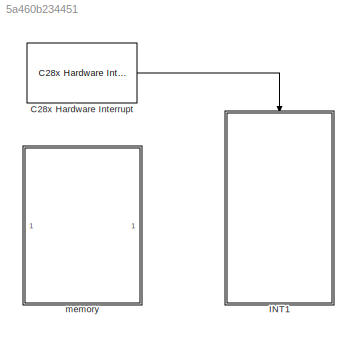
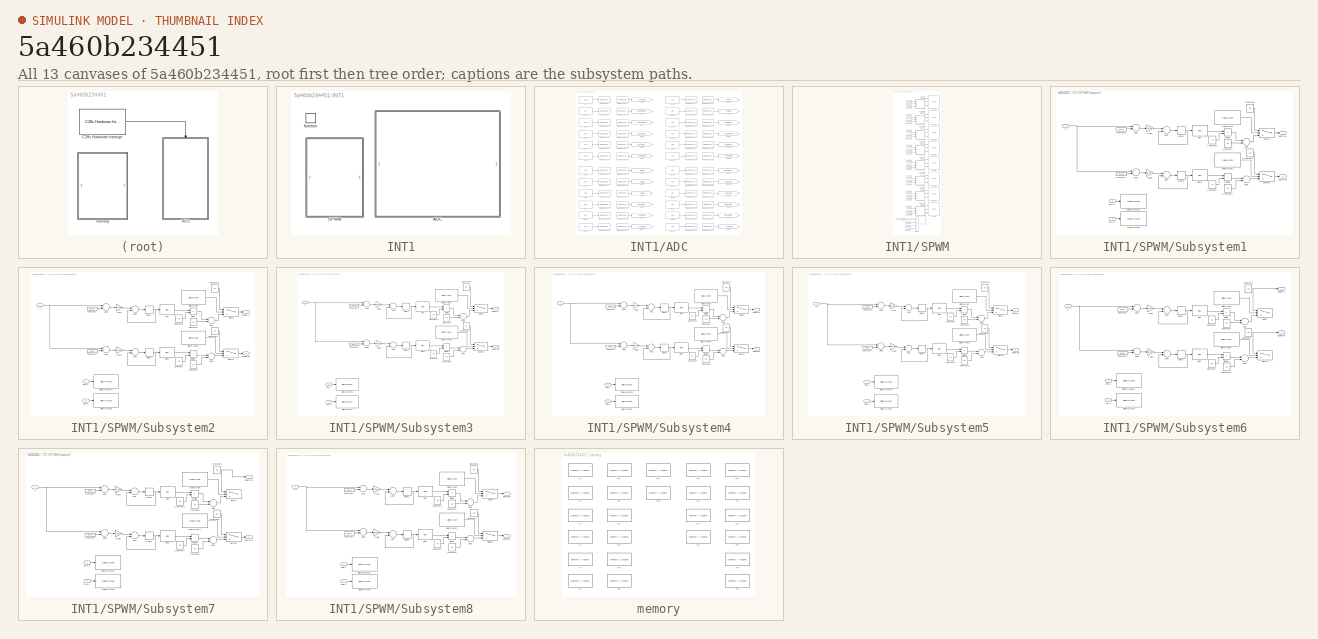
[diagram: thumbnail index - all 13 canvases of the model, root first then tree order]
MODEL slx_5a460b234451
KIND model
CONFIG AbsTol = auto
CONFIG EnableMultiTasking = on
CONFIG FixedStep = auto
CONFIG MaxStep = auto
CONFIG MinStep = auto
CONFIG RelTol = 1e-3
CONFIG SampleTimeConstraint = Unconstrained
CONFIG Solver = FixedStepDiscrete
CONFIG SolverName = FixedStepDiscrete
CONFIG StartTime = 0.0
CONFIG StopTime = Inf
BLOCK [Reference] C28x Hardware Interrupt  REF=c2000lib/Scheduling/C28x Hardware Interrupt
  Ports = [0, 1]
  SourceBlock = c2000lib/Scheduling/C28x Hardware Interrupt
  SourceProductBaseCode = TIC2000
  SourceProductName = Embedded Coder Support Package for Texas Instruments C2000 Processors
  SourceType = C28x Interrupt Block
BLOCK [SubSystem] INT1
  Ports = [0, 0, 0, 1]
  RequestExecContextInheritance = off
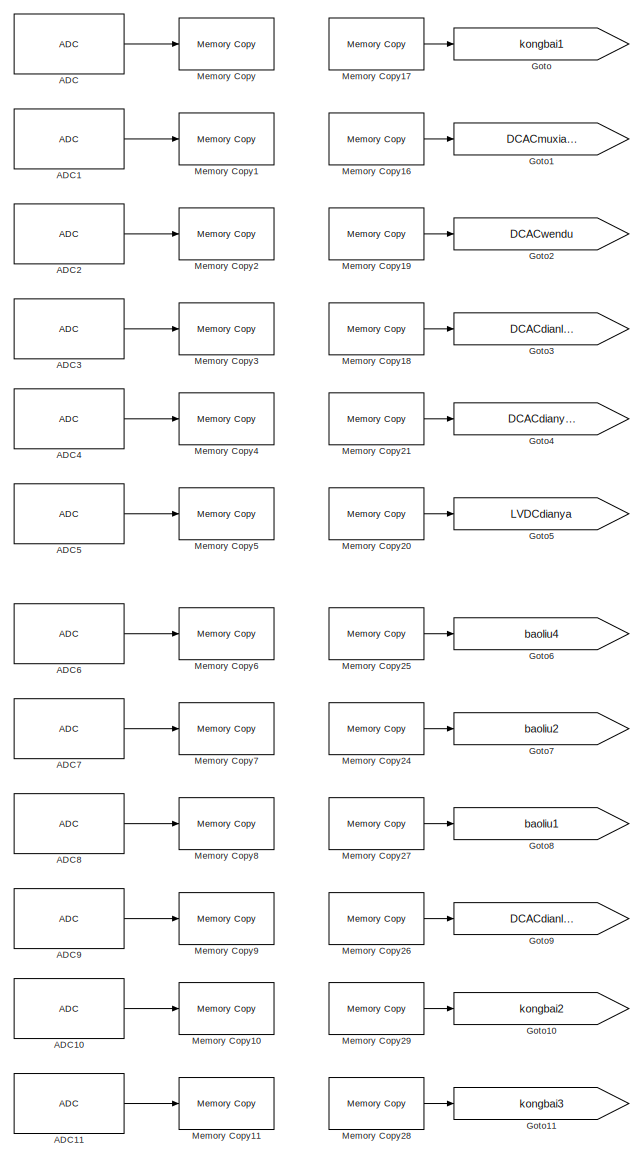
[diagram: INT1/ADC - part 1/2, left side, full height]
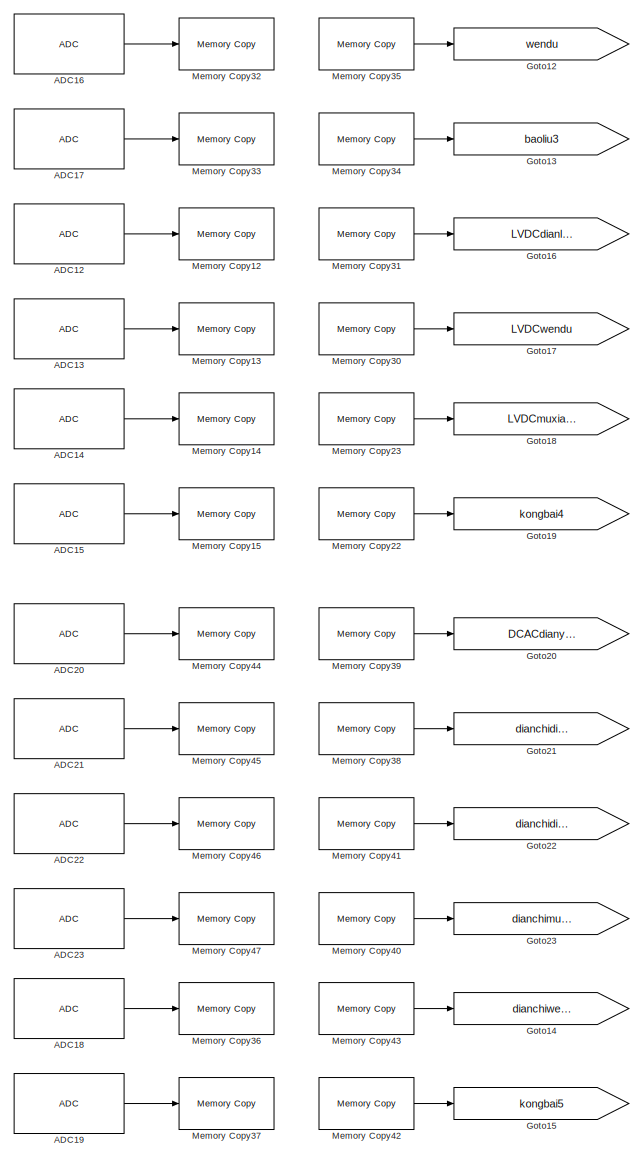
[diagram: INT1/ADC - part 2/2, right side, full height]
BLOCK [SubSystem] INT1/ADC
  Ports = []
  RequestExecContextInheritance = off
BLOCK [Reference] INT1/ADC/ADC  REF=c2802xlib/ADC
  Commented = on
  Ports = [0, 1]
  SourceBlock = c2802xlib/ADC
  SourceProductBaseCode = TIC2000
  SourceProductName = Embedded Coder Support Package for Texas Instruments C2000 Processors
  SourceType = C2802x/03x/05x/06x/M3x/37x/07x/004x ADC
  UserDataPersistent = on
BLOCK [Reference] INT1/ADC/ADC1  REF=c2802xlib/ADC
  Commented = on
  Ports = [0, 1]
  SourceBlock = c2802xlib/ADC
  SourceProductBaseCode = TIC2000
  SourceProductName = Embedded Coder Support Package for Texas Instruments C2000 Processors
  SourceType = C2802x/03x/05x/06x/M3x/37x/07x/004x ADC
  UserDataPersistent = on
BLOCK [Reference] INT1/ADC/ADC10  REF=c2802xlib/ADC
  Commented = on
  Ports = [0, 1]
  SourceBlock = c2802xlib/ADC
  SourceProductBaseCode = TIC2000
  SourceProductName = Embedded Coder Support Package for Texas Instruments C2000 Processors
  SourceType = C2802x/03x/05x/06x/M3x/37x/07x/004x ADC
  UserDataPersistent = on
BLOCK [Reference] INT1/ADC/ADC11  REF=c2802xlib/ADC
  Commented = on
  Ports = [0, 1]
  SourceBlock = c2802xlib/ADC
  SourceProductBaseCode = TIC2000
  SourceProductName = Embedded Coder Support Package for Texas Instruments C2000 Processors
  SourceType = C2802x/03x/05x/06x/M3x/37x/07x/004x ADC
  UserDataPersistent = on
BLOCK [Reference] INT1/ADC/ADC12  REF=c2802xlib/ADC
  Ports = [0, 1]
  SourceBlock = c2802xlib/ADC
  SourceProductBaseCode = TIC2000
  SourceProductName = Embedded Coder Support Package for Texas Instruments C2000 Processors
  SourceType = C2802x/03x/05x/06x/M3x/37x/07x/004x ADC
  UserDataPersistent = on
BLOCK [Reference] INT1/ADC/ADC13  REF=c2802xlib/ADC
  Commented = on
  Ports = [0, 1]
  SourceBlock = c2802xlib/ADC
  SourceProductBaseCode = TIC2000
  SourceProductName = Embedded Coder Support Package for Texas Instruments C2000 Processors
  SourceType = C2802x/03x/05x/06x/M3x/37x/07x/004x ADC
  UserDataPersistent = on
BLOCK [Reference] INT1/ADC/ADC14  REF=c2802xlib/ADC
  Commented = on
  Ports = [0, 1]
  SourceBlock = c2802xlib/ADC
  SourceProductBaseCode = TIC2000
  SourceProductName = Embedded Coder Support Package for Texas Instruments C2000 Processors
  SourceType = C2802x/03x/05x/06x/M3x/37x/07x/004x ADC
  UserDataPersistent = on
BLOCK [Reference] INT1/ADC/ADC15  REF=c2802xlib/ADC
  Commented = on
  Ports = [0, 1]
  SourceBlock = c2802xlib/ADC
  SourceProductBaseCode = TIC2000
  SourceProductName = Embedded Coder Support Package for Texas Instruments C2000 Processors
  SourceType = C2802x/03x/05x/06x/M3x/37x/07x/004x ADC
  UserDataPersistent = on
BLOCK [Reference] INT1/ADC/ADC16  REF=c2802xlib/ADC
  Commented = on
  Ports = [0, 1]
  SourceBlock = c2802xlib/ADC
  SourceProductBaseCode = TIC2000
  SourceProductName = Embedded Coder Support Package for Texas Instruments C2000 Processors
  SourceType = C2802x/03x/05x/06x/M3x/37x/07x/004x ADC
  UserDataPersistent = on
BLOCK [Reference] INT1/ADC/ADC17  REF=c2802xlib/ADC
  Commented = on
  Ports = [0, 1]
  SourceBlock = c2802xlib/ADC
  SourceProductBaseCode = TIC2000
  SourceProductName = Embedded Coder Support Package for Texas Instruments C2000 Processors
  SourceType = C2802x/03x/05x/06x/M3x/37x/07x/004x ADC
  UserDataPersistent = on
BLOCK [Reference] INT1/ADC/ADC18  REF=c2802xlib/ADC
  Commented = on
  Ports = [0, 1]
  SourceBlock = c2802xlib/ADC
  SourceProductBaseCode = TIC2000
  SourceProductName = Embedded Coder Support Package for Texas Instruments C2000 Processors
  SourceType = C2802x/03x/05x/06x/M3x/37x/07x/004x ADC
  UserDataPersistent = on
BLOCK [Reference] INT1/ADC/ADC19  REF=c2802xlib/ADC
  Commented = on
  Ports = [0, 1]
  SourceBlock = c2802xlib/ADC
  SourceProductBaseCode = TIC2000
  SourceProductName = Embedded Coder Support Package for Texas Instruments C2000 Processors
  SourceType = C2802x/03x/05x/06x/M3x/37x/07x/004x ADC
  UserDataPersistent = on
BLOCK [Reference] INT1/ADC/ADC2  REF=c2802xlib/ADC
  Commented = on
  Ports = [0, 1]
  SourceBlock = c2802xlib/ADC
  SourceProductBaseCode = TIC2000
  SourceProductName = Embedded Coder Support Package for Texas Instruments C2000 Processors
  SourceType = C2802x/03x/05x/06x/M3x/37x/07x/004x ADC
  UserDataPersistent = on
BLOCK [Reference] INT1/ADC/ADC20  REF=c2802xlib/ADC
  Commented = on
  Ports = [0, 1]
  SourceBlock = c2802xlib/ADC
  SourceProductBaseCode = TIC2000
  SourceProductName = Embedded Coder Support Package for Texas Instruments C2000 Processors
  SourceType = C2802x/03x/05x/06x/M3x/37x/07x/004x ADC
  UserDataPersistent = on
BLOCK [Reference] INT1/ADC/ADC21  REF=c2802xlib/ADC
  Commented = on
  Ports = [0, 1]
  SourceBlock = c2802xlib/ADC
  SourceProductBaseCode = TIC2000
  SourceProductName = Embedded Coder Support Package for Texas Instruments C2000 Processors
  SourceType = C2802x/03x/05x/06x/M3x/37x/07x/004x ADC
  UserDataPersistent = on
BLOCK [Reference] INT1/ADC/ADC22  REF=c2802xlib/ADC
  Commented = on
  Ports = [0, 1]
  SourceBlock = c2802xlib/ADC
  SourceProductBaseCode = TIC2000
  SourceProductName = Embedded Coder Support Package for Texas Instruments C2000 Processors
  SourceType = C2802x/03x/05x/06x/M3x/37x/07x/004x ADC
  UserDataPersistent = on
BLOCK [Reference] INT1/ADC/ADC23  REF=c2802xlib/ADC
  Commented = on
  Ports = [0, 1]
  SourceBlock = c2802xlib/ADC
  SourceProductBaseCode = TIC2000
  SourceProductName = Embedded Coder Support Package for Texas Instruments C2000 Processors
  SourceType = C2802x/03x/05x/06x/M3x/37x/07x/004x ADC
  UserDataPersistent = on
BLOCK [Reference] INT1/ADC/ADC3  REF=c2802xlib/ADC
  Commented = on
  Ports = [0, 1]
  SourceBlock = c2802xlib/ADC
  SourceProductBaseCode = TIC2000
  SourceProductName = Embedded Coder Support Package for Texas Instruments C2000 Processors
  SourceType = C2802x/03x/05x/06x/M3x/37x/07x/004x ADC
  UserDataPersistent = on
BLOCK [Reference] INT1/ADC/ADC4  REF=c2802xlib/ADC
  Commented = on
  Ports = [0, 1]
  SourceBlock = c2802xlib/ADC
  SourceProductBaseCode = TIC2000
  SourceProductName = Embedded Coder Support Package for Texas Instruments C2000 Processors
  SourceType = C2802x/03x/05x/06x/M3x/37x/07x/004x ADC
  UserDataPersistent = on
BLOCK [Reference] INT1/ADC/ADC5  REF=c2802xlib/ADC
  Commented = on
  Ports = [0, 1]
  SourceBlock = c2802xlib/ADC
  SourceProductBaseCode = TIC2000
  SourceProductName = Embedded Coder Support Package for Texas Instruments C2000 Processors
  SourceType = C2802x/03x/05x/06x/M3x/37x/07x/004x ADC
  UserDataPersistent = on
BLOCK [Reference] INT1/ADC/ADC6  REF=c2802xlib/ADC
  Commented = on
  Ports = [0, 1]
  SourceBlock = c2802xlib/ADC
  SourceProductBaseCode = TIC2000
  SourceProductName = Embedded Coder Support Package for Texas Instruments C2000 Processors
  SourceType = C2802x/03x/05x/06x/M3x/37x/07x/004x ADC
  UserDataPersistent = on
BLOCK [Reference] INT1/ADC/ADC7  REF=c2802xlib/ADC
  Commented = on
  Ports = [0, 1]
  SourceBlock = c2802xlib/ADC
  SourceProductBaseCode = TIC2000
  SourceProductName = Embedded Coder Support Package for Texas Instruments C2000 Processors
  SourceType = C2802x/03x/05x/06x/M3x/37x/07x/004x ADC
  UserDataPersistent = on
BLOCK [Reference] INT1/ADC/ADC8  REF=c2802xlib/ADC
  Commented = on
  Ports = [0, 1]
  SourceBlock = c2802xlib/ADC
  SourceProductBaseCode = TIC2000
  SourceProductName = Embedded Coder Support Package for Texas Instruments C2000 Processors
  SourceType = C2802x/03x/05x/06x/M3x/37x/07x/004x ADC
  UserDataPersistent = on
BLOCK [Reference] INT1/ADC/ADC9  REF=c2802xlib/ADC
  Commented = on
  Ports = [0, 1]
  SourceBlock = c2802xlib/ADC
  SourceProductBaseCode = TIC2000
  SourceProductName = Embedded Coder Support Package for Texas Instruments C2000 Processors
  SourceType = C2802x/03x/05x/06x/M3x/37x/07x/004x ADC
  UserDataPersistent = on
BLOCK [Goto] INT1/ADC/Goto
  Commented = on
  GotoTag = kongbai1
BLOCK [Goto] INT1/ADC/Goto1
  Commented = on
  GotoTag = DCACmuxiandianya
BLOCK [Goto] INT1/ADC/Goto10
  Commented = on
  GotoTag = kongbai2
BLOCK [Goto] INT1/ADC/Goto11
  Commented = on
  GotoTag = kongbai3
BLOCK [Goto] INT1/ADC/Goto12
  Commented = on
  GotoTag = wendu
BLOCK [Goto] INT1/ADC/Goto13
  Commented = on
  GotoTag = baoliu3
BLOCK [Goto] INT1/ADC/Goto14
  Commented = on
  GotoTag = dianchiwendu
BLOCK [Goto] INT1/ADC/Goto15
  Commented = on
  GotoTag = kongbai5
BLOCK [Goto] INT1/ADC/Goto16
  GotoTag = LVDCdianliu
  TagVisibility = global
BLOCK [Goto] INT1/ADC/Goto17
  Commented = on
  GotoTag = LVDCwendu
BLOCK [Goto] INT1/ADC/Goto18
  Commented = on
  GotoTag = LVDCmuxiandianya
BLOCK [Goto] INT1/ADC/Goto19
  Commented = on
  GotoTag = kongbai4
BLOCK [Goto] INT1/ADC/Goto2
  Commented = on
  GotoTag = DCACwendu
BLOCK [Goto] INT1/ADC/Goto20
  Commented = on
  GotoTag = DCACdianya2
BLOCK [Goto] INT1/ADC/Goto21
  Commented = on
  GotoTag = dianchidianliu
BLOCK [Goto] INT1/ADC/Goto22
  Commented = on
  GotoTag = dianchidianya
BLOCK [Goto] INT1/ADC/Goto23
  Commented = on
  GotoTag = dianchimuxiandianya
BLOCK [Goto] INT1/ADC/Goto3
  Commented = on
  GotoTag = DCACdianliu1
BLOCK [Goto] INT1/ADC/Goto4
  Commented = on
  GotoTag = DCACdianya1
BLOCK [Goto] INT1/ADC/Goto5
  Commented = on
  GotoTag = LVDCdianya
BLOCK [Goto] INT1/ADC/Goto6
  Commented = on
  GotoTag = baoliu4
BLOCK [Goto] INT1/ADC/Goto7
  Commented = on
  GotoTag = baoliu2
BLOCK [Goto] INT1/ADC/Goto8
  Commented = on
  GotoTag = baoliu1
BLOCK [Goto] INT1/ADC/Goto9
  Commented = on
  GotoTag = DCACdianliu2
BLOCK [Reference] INT1/ADC/Memory Copy  REF=idelinklib_common/Memory Copy
  Commented = on
  Ports = [1]
  SourceBlock = idelinklib_common/Memory Copy
  SourceType = Memory Copy
BLOCK [Reference] INT1/ADC/Memory Copy1  REF=idelinklib_common/Memory Copy
  Commented = on
  Ports = [1]
  SourceBlock = idelinklib_common/Memory Copy
  SourceType = Memory Copy
BLOCK [Reference] INT1/ADC/Memory Copy10  REF=idelinklib_common/Memory Copy
  Commented = on
  Ports = [1]
  SourceBlock = idelinklib_common/Memory Copy
  SourceType = Memory Copy
BLOCK [Reference] INT1/ADC/Memory Copy11  REF=idelinklib_common/Memory Copy
  Commented = on
  Ports = [1]
  SourceBlock = idelinklib_common/Memory Copy
  SourceType = Memory Copy
BLOCK [Reference] INT1/ADC/Memory Copy12  REF=idelinklib_common/Memory Copy
  Ports = [1]
  SourceBlock = idelinklib_common/Memory Copy
  SourceType = Memory Copy
BLOCK [Reference] INT1/ADC/Memory Copy13  REF=idelinklib_common/Memory Copy
  Commented = on
  Ports = [1]
  SourceBlock = idelinklib_common/Memory Copy
  SourceType = Memory Copy
BLOCK [Reference] INT1/ADC/Memory Copy14  REF=idelinklib_common/Memory Copy
  Commented = on
  Ports = [1]
  SourceBlock = idelinklib_common/Memory Copy
  SourceType = Memory Copy
BLOCK [Reference] INT1/ADC/Memory Copy15  REF=idelinklib_common/Memory Copy
  Commented = on
  Ports = [1]
  SourceBlock = idelinklib_common/Memory Copy
  SourceType = Memory Copy
BLOCK [Reference] INT1/ADC/Memory Copy16  REF=idelinklib_common/Memory Copy
  Commented = on
  Ports = [0, 1]
  SourceBlock = idelinklib_common/Memory Copy
  SourceType = Memory Copy
BLOCK [Reference] INT1/ADC/Memory Copy17  REF=idelinklib_common/Memory Copy
  Commented = on
  Ports = [0, 1]
  SourceBlock = idelinklib_common/Memory Copy
  SourceType = Memory Copy
BLOCK [Reference] INT1/ADC/Memory Copy18  REF=idelinklib_common/Memory Copy
  Commented = on
  Ports = [0, 1]
  SourceBlock = idelinklib_common/Memory Copy
  SourceType = Memory Copy
BLOCK [Reference] INT1/ADC/Memory Copy19  REF=idelinklib_common/Memory Copy
  Commented = on
  Ports = [0, 1]
  SourceBlock = idelinklib_common/Memory Copy
  SourceType = Memory Copy
BLOCK [Reference] INT1/ADC/Memory Copy2  REF=idelinklib_common/Memory Copy
  Commented = on
  Ports = [1]
  SourceBlock = idelinklib_common/Memory Copy
  SourceType = Memory Copy
BLOCK [Reference] INT1/ADC/Memory Copy20  REF=idelinklib_common/Memory Copy
  Commented = on
  Ports = [0, 1]
  SourceBlock = idelinklib_common/Memory Copy
  SourceType = Memory Copy
BLOCK [Reference] INT1/ADC/Memory Copy21  REF=idelinklib_common/Memory Copy
  Commented = on
  Ports = [0, 1]
  SourceBlock = idelinklib_common/Memory Copy
  SourceType = Memory Copy
BLOCK [Reference] INT1/ADC/Memory Copy22  REF=idelinklib_common/Memory Copy
  Commented = on
  Ports = [0, 1]
  SourceBlock = idelinklib_common/Memory Copy
  SourceType = Memory Copy
BLOCK [Reference] INT1/ADC/Memory Copy23  REF=idelinklib_common/Memory Copy
  Commented = on
  Ports = [0, 1]
  SourceBlock = idelinklib_common/Memory Copy
  SourceType = Memory Copy
BLOCK [Reference] INT1/ADC/Memory Copy24  REF=idelinklib_common/Memory Copy
  Commented = on
  Ports = [0, 1]
  SourceBlock = idelinklib_common/Memory Copy
  SourceType = Memory Copy
BLOCK [Reference] INT1/ADC/Memory Copy25  REF=idelinklib_common/Memory Copy
  Commented = on
  Ports = [0, 1]
  SourceBlock = idelinklib_common/Memory Copy
  SourceType = Memory Copy
BLOCK [Reference] INT1/ADC/Memory Copy26  REF=idelinklib_common/Memory Copy
  Commented = on
  Ports = [0, 1]
  SourceBlock = idelinklib_common/Memory Copy
  SourceType = Memory Copy
BLOCK [Reference] INT1/ADC/Memory Copy27  REF=idelinklib_common/Memory Copy
  Commented = on
  Ports = [0, 1]
  SourceBlock = idelinklib_common/Memory Copy
  SourceType = Memory Copy
BLOCK [Reference] INT1/ADC/Memory Copy28  REF=idelinklib_common/Memory Copy
  Commented = on
  Ports = [0, 1]
  SourceBlock = idelinklib_common/Memory Copy
  SourceType = Memory Copy
BLOCK [Reference] INT1/ADC/Memory Copy29  REF=idelinklib_common/Memory Copy
  Commented = on
  Ports = [0, 1]
  SourceBlock = idelinklib_common/Memory Copy
  SourceType = Memory Copy
BLOCK [Reference] INT1/ADC/Memory Copy3  REF=idelinklib_common/Memory Copy
  Commented = on
  Ports = [1]
  SourceBlock = idelinklib_common/Memory Copy
  SourceType = Memory Copy
BLOCK [Reference] INT1/ADC/Memory Copy30  REF=idelinklib_common/Memory Copy
  Commented = on
  Ports = [0, 1]
  SourceBlock = idelinklib_common/Memory Copy
  SourceType = Memory Copy
BLOCK [Reference] INT1/ADC/Memory Copy31  REF=idelinklib_common/Memory Copy
  Ports = [0, 1]
  SourceBlock = idelinklib_common/Memory Copy
  SourceType = Memory Copy
BLOCK [Reference] INT1/ADC/Memory Copy32  REF=idelinklib_common/Memory Copy
  Commented = on
  Ports = [1]
  SourceBlock = idelinklib_common/Memory Copy
  SourceType = Memory Copy
BLOCK [Reference] INT1/ADC/Memory Copy33  REF=idelinklib_common/Memory Copy
  Commented = on
  Ports = [1]
  SourceBlock = idelinklib_common/Memory Copy
  SourceType = Memory Copy
BLOCK [Reference] INT1/ADC/Memory Copy34  REF=idelinklib_common/Memory Copy
  Commented = on
  Ports = [0, 1]
  SourceBlock = idelinklib_common/Memory Copy
  SourceType = Memory Copy
BLOCK [Reference] INT1/ADC/Memory Copy35  REF=idelinklib_common/Memory Copy
  Commented = on
  Ports = [0, 1]
  SourceBlock = idelinklib_common/Memory Copy
  SourceType = Memory Copy
BLOCK [Reference] INT1/ADC/Memory Copy36  REF=idelinklib_common/Memory Copy
  Commented = on
  Ports = [1]
  SourceBlock = idelinklib_common/Memory Copy
  SourceType = Memory Copy
BLOCK [Reference] INT1/ADC/Memory Copy37  REF=idelinklib_common/Memory Copy
  Commented = on
  Ports = [1]
  SourceBlock = idelinklib_common/Memory Copy
  SourceType = Memory Copy
BLOCK [Reference] INT1/ADC/Memory Copy38  REF=idelinklib_common/Memory Copy
  Commented = on
  Ports = [0, 1]
  SourceBlock = idelinklib_common/Memory Copy
  SourceType = Memory Copy
BLOCK [Reference] INT1/ADC/Memory Copy39  REF=idelinklib_common/Memory Copy
  Commented = on
  Ports = [0, 1]
  SourceBlock = idelinklib_common/Memory Copy
  SourceType = Memory Copy
BLOCK [Reference] INT1/ADC/Memory Copy4  REF=idelinklib_common/Memory Copy
  Commented = on
  Ports = [1]
  SourceBlock = idelinklib_common/Memory Copy
  SourceType = Memory Copy
BLOCK [Reference] INT1/ADC/Memory Copy40  REF=idelinklib_common/Memory Copy
  Commented = on
  Ports = [0, 1]
  SourceBlock = idelinklib_common/Memory Copy
  SourceType = Memory Copy
BLOCK [Reference] INT1/ADC/Memory Copy41  REF=idelinklib_common/Memory Copy
  Commented = on
  Ports = [0, 1]
  SourceBlock = idelinklib_common/Memory Copy
  SourceType = Memory Copy
BLOCK [Reference] INT1/ADC/Memory Copy42  REF=idelinklib_common/Memory Copy
  Commented = on
  Ports = [0, 1]
  SourceBlock = idelinklib_common/Memory Copy
  SourceType = Memory Copy
BLOCK [Reference] INT1/ADC/Memory Copy43  REF=idelinklib_common/Memory Copy
  Commented = on
  Ports = [0, 1]
  SourceBlock = idelinklib_common/Memory Copy
  SourceType = Memory Copy
BLOCK [Reference] INT1/ADC/Memory Copy44  REF=idelinklib_common/Memory Copy
  Commented = on
  Ports = [1]
  SourceBlock = idelinklib_common/Memory Copy
  SourceType = Memory Copy
BLOCK [Reference] INT1/ADC/Memory Copy45  REF=idelinklib_common/Memory Copy
  Commented = on
  Ports = [1]
  SourceBlock = idelinklib_common/Memory Copy
  SourceType = Memory Copy
BLOCK [Reference] INT1/ADC/Memory Copy46  REF=idelinklib_common/Memory Copy
  Commented = on
  Ports = [1]
  SourceBlock = idelinklib_common/Memory Copy
  SourceType = Memory Copy
BLOCK [Reference] INT1/ADC/Memory Copy47  REF=idelinklib_common/Memory Copy
  Commented = on
  Ports = [1]
  SourceBlock = idelinklib_common/Memory Copy
  SourceType = Memory Copy
BLOCK [Reference] INT1/ADC/Memory Copy5  REF=idelinklib_common/Memory Copy
  Commented = on
  Ports = [1]
  SourceBlock = idelinklib_common/Memory Copy
  SourceType = Memory Copy
BLOCK [Reference] INT1/ADC/Memory Copy6  REF=idelinklib_common/Memory Copy
  Commented = on
  Ports = [1]
  SourceBlock = idelinklib_common/Memory Copy
  SourceType = Memory Copy
BLOCK [Reference] INT1/ADC/Memory Copy7  REF=idelinklib_common/Memory Copy
  Commented = on
  Ports = [1]
  SourceBlock = idelinklib_common/Memory Copy
  SourceType = Memory Copy
BLOCK [Reference] INT1/ADC/Memory Copy8  REF=idelinklib_common/Memory Copy
  Commented = on
  Ports = [1]
  SourceBlock = idelinklib_common/Memory Copy
  SourceType = Memory Copy
BLOCK [Reference] INT1/ADC/Memory Copy9  REF=idelinklib_common/Memory Copy
  Commented = on
  Ports = [1]
  SourceBlock = idelinklib_common/Memory Copy
  SourceType = Memory Copy
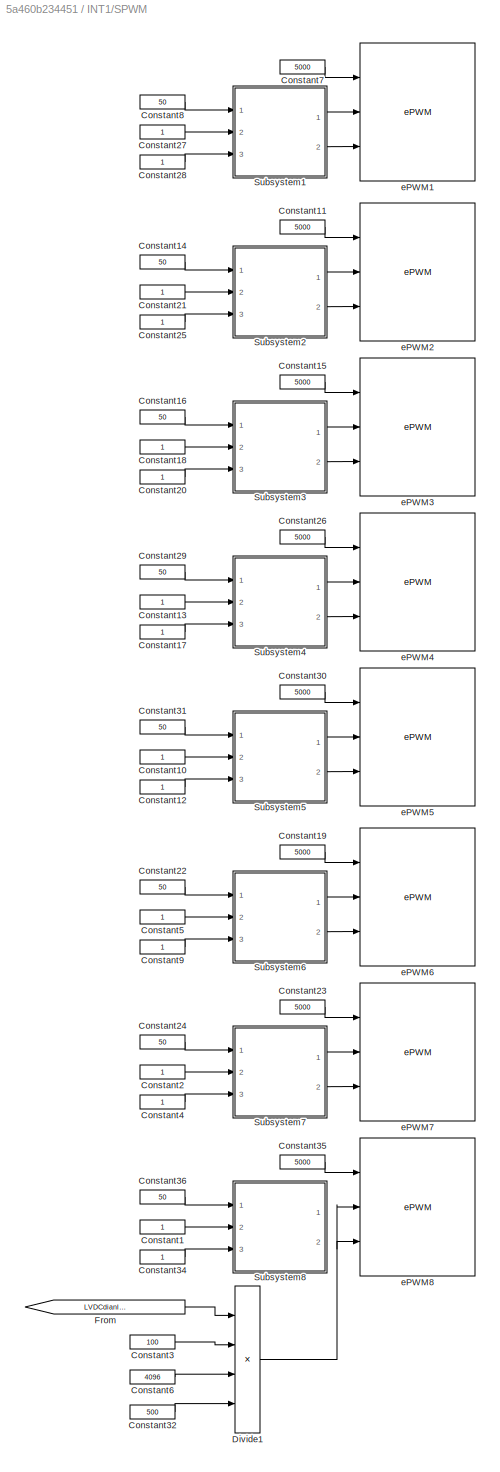
BLOCK [SubSystem] INT1/SPWM
  Ports = []
  RequestExecContextInheritance = off
BLOCK [Constant] INT1/SPWM/Constant1
  OutDataTypeStr = boolean
  VectorParams1D = off
BLOCK [Constant] INT1/SPWM/Constant10
  Commented = on
  OutDataTypeStr = boolean
  VectorParams1D = off
BLOCK [Constant] INT1/SPWM/Constant11
  Commented = on
  Value = 5000
  VectorParams1D = off
BLOCK [Constant] INT1/SPWM/Constant12
  Commented = on
  OutDataTypeStr = boolean
  VectorParams1D = off
BLOCK [Constant] INT1/SPWM/Constant13
  Commented = on
  OutDataTypeStr = boolean
  VectorParams1D = off
BLOCK [Constant] INT1/SPWM/Constant14
  Commented = on
  Value = 50
  VectorParams1D = off
BLOCK [Constant] INT1/SPWM/Constant15
  Commented = on
  Value = 5000
  VectorParams1D = off
BLOCK [Constant] INT1/SPWM/Constant16
  Commented = on
  Value = 50
  VectorParams1D = off
BLOCK [Constant] INT1/SPWM/Constant17
  Commented = on
  OutDataTypeStr = boolean
  VectorParams1D = off
BLOCK [Constant] INT1/SPWM/Constant18
  Commented = on
  OutDataTypeStr = boolean
  VectorParams1D = off
BLOCK [Constant] INT1/SPWM/Constant19
  Commented = on
  Value = 5000
  VectorParams1D = off
BLOCK [Constant] INT1/SPWM/Constant2
  Commented = on
  OutDataTypeStr = boolean
  VectorParams1D = off
BLOCK [Constant] INT1/SPWM/Constant20
  Commented = on
  OutDataTypeStr = boolean
  VectorParams1D = off
BLOCK [Constant] INT1/SPWM/Constant21
  Commented = on
  OutDataTypeStr = boolean
  VectorParams1D = off
BLOCK [Constant] INT1/SPWM/Constant22
  Commented = on
  Value = 50
  VectorParams1D = off
BLOCK [Constant] INT1/SPWM/Constant23
  Commented = on
  Value = 5000
  VectorParams1D = off
BLOCK [Constant] INT1/SPWM/Constant24
  Commented = on
  Value = 50
  VectorParams1D = off
BLOCK [Constant] INT1/SPWM/Constant25
  Commented = on
  OutDataTypeStr = boolean
  VectorParams1D = off
BLOCK [Constant] INT1/SPWM/Constant26
  Commented = on
  Value = 5000
  VectorParams1D = off
BLOCK [Constant] INT1/SPWM/Constant27
  Commented = on
  OutDataTypeStr = boolean
  VectorParams1D = off
BLOCK [Constant] INT1/SPWM/Constant28
  Commented = on
  OutDataTypeStr = boolean
  VectorParams1D = off
BLOCK [Constant] INT1/SPWM/Constant29
  Commented = on
  Value = 50
  VectorParams1D = off
BLOCK [Constant] INT1/SPWM/Constant3
  Value = 100
  VectorParams1D = off
BLOCK [Constant] INT1/SPWM/Constant30
  Commented = on
  Value = 5000
  VectorParams1D = off
BLOCK [Constant] INT1/SPWM/Constant31
  Commented = on
  Value = 50
  VectorParams1D = off
BLOCK [Constant] INT1/SPWM/Constant32
  Value = 500
  VectorParams1D = off
BLOCK [Constant] INT1/SPWM/Constant34
  OutDataTypeStr = boolean
  VectorParams1D = off
BLOCK [Constant] INT1/SPWM/Constant35
  Value = 5000
  VectorParams1D = off
BLOCK [Constant] INT1/SPWM/Constant36
  Value = 50
  VectorParams1D = off
BLOCK [Constant] INT1/SPWM/Constant4
  Commented = on
  OutDataTypeStr = boolean
  VectorParams1D = off
BLOCK [Constant] INT1/SPWM/Constant5
  Commented = on
  OutDataTypeStr = boolean
  VectorParams1D = off
BLOCK [Constant] INT1/SPWM/Constant6
  Value = 4096
  VectorParams1D = off
BLOCK [Constant] INT1/SPWM/Constant7
  Commented = on
  Value = 5000
  VectorParams1D = off
BLOCK [Constant] INT1/SPWM/Constant8
  Commented = on
  Value = 50
  VectorParams1D = off
BLOCK [Constant] INT1/SPWM/Constant9
  Commented = on
  OutDataTypeStr = boolean
  VectorParams1D = off
BLOCK [Product] INT1/SPWM/Divide1
  InputSameDT = off
  Inputs = **//
  OutDataTypeStr = Inherit: Inherit via internal rule
  Ports = [4, 1]
  RndMeth = Floor
  SaturateOnIntegerOverflow = off
BLOCK [From] INT1/SPWM/From
  GotoTag = LVDCdianliu
  TagVisibility = global
BLOCK [SubSystem] INT1/SPWM/Subsystem1
  Commented = on
  Ports = [3, 2]
  RequestExecContextInheritance = off
BLOCK [Sum] INT1/SPWM/Subsystem1/Add1
  InputSameDT = off
  OutDataTypeStr = Inherit: Inherit via internal rule
  Ports = [2, 1]
  SaturateOnIntegerOverflow = off
BLOCK [Sum] INT1/SPWM/Subsystem1/Add2
  InputSameDT = off
  OutDataTypeStr = Inherit: Inherit via internal rule
  Ports = [2, 1]
  SaturateOnIntegerOverflow = off
BLOCK [Sum] INT1/SPWM/Subsystem1/Add3
  InputSameDT = off
  Inputs = +-
  OutDataTypeStr = Inherit: Inherit via internal rule
  Ports = [2, 1]
  SaturateOnIntegerOverflow = off
BLOCK [Sum] INT1/SPWM/Subsystem1/Add4
  InputSameDT = off
  OutDataTypeStr = Inherit: Inherit via internal rule
  Ports = [2, 1]
  SaturateOnIntegerOverflow = off
BLOCK [Sum] INT1/SPWM/Subsystem1/Add5
  InputSameDT = off
  OutDataTypeStr = Inherit: Inherit via internal rule
  Ports = [2, 1]
  SaturateOnIntegerOverflow = off
BLOCK [Sum] INT1/SPWM/Subsystem1/Add6
  InputSameDT = off
  Inputs = +-
  OutDataTypeStr = Inherit: Inherit via internal rule
  Ports = [2, 1]
  SaturateOnIntegerOverflow = off
BLOCK [Constant] INT1/SPWM/Subsystem1/Constant1
  Value = 0.0471
  VectorParams1D = off
BLOCK [Constant] INT1/SPWM/Subsystem1/Constant2
  Value = 40
  VectorParams1D = off
BLOCK [Constant] INT1/SPWM/Subsystem1/Constant3
  Value = 50
  VectorParams1D = off
BLOCK [Constant] INT1/SPWM/Subsystem1/Constant4
  Value = 0.0471
  VectorParams1D = off
BLOCK [Constant] INT1/SPWM/Subsystem1/Constant5
  Value = 50
  VectorParams1D = off
BLOCK [Constant] INT1/SPWM/Subsystem1/Constant6
  Value = 50
  VectorParams1D = off
BLOCK [Constant] INT1/SPWM/Subsystem1/Constant7
  Value = 40
  VectorParams1D = off
BLOCK [Constant] INT1/SPWM/Subsystem1/Constant8
  Value = 50
  VectorParams1D = off
BLOCK [Delay] INT1/SPWM/Subsystem1/Delay1
  DelayLength = 1
  InputPortMap = u0
  Ports = [1, 1]
BLOCK [Delay] INT1/SPWM/Subsystem1/Delay2
  DelayLength = 1
  InputPortMap = u0
  Ports = [1, 1]
BLOCK [Reference] INT1/SPWM/Subsystem1/Digital Input  REF=c2837xDlib/Digital Input
  Ports = [0, 1]
  SourceBlock = c2837xDlib/Digital Input
  SourceProductBaseCode = TIC2000
  SourceProductName = Embedded Coder Support Package for Texas Instruments C2000 Processors
  SourceType = F2837x GPIO Digital Input
  UserDataPersistent = on
BLOCK [Reference] INT1/SPWM/Subsystem1/Digital Input1  REF=c2837xDlib/Digital Input
  Ports = [0, 1]
  SourceBlock = c2837xDlib/Digital Input
  SourceProductBaseCode = TIC2000
  SourceProductName = Embedded Coder Support Package for Texas Instruments C2000 Processors
  SourceType = F2837x GPIO Digital Input
  UserDataPersistent = on
BLOCK [Reference] INT1/SPWM/Subsystem1/Digital Output  REF=c2837xDlib/Digital Output
  Ports = [1]
  SourceBlock = c2837xDlib/Digital Output
  SourceProductBaseCode = TIC2000
  SourceProductName = Embedded Coder Support Package for Texas Instruments C2000 Processors
  SourceType = F2837x GPIO Digital Output
  UserDataPersistent = on
BLOCK [Reference] INT1/SPWM/Subsystem1/Digital Output1  REF=c2837xDlib/Digital Output
  Ports = [1]
  SourceBlock = c2837xDlib/Digital Output
  SourceProductBaseCode = TIC2000
  SourceProductName = Embedded Coder Support Package for Texas Instruments C2000 Processors
  SourceType = F2837x GPIO Digital Output
  UserDataPersistent = on
BLOCK [Product] INT1/SPWM/Subsystem1/Divide
  InputSameDT = off
  Inputs = **
  OutDataTypeStr = Inherit: Inherit via internal rule
  Ports = [2, 1]
  RndMeth = Floor
  SaturateOnIntegerOverflow = off
BLOCK [Product] INT1/SPWM/Subsystem1/Divide1
  InputSameDT = off
  Inputs = **
  OutDataTypeStr = Inherit: Inherit via internal rule
  Ports = [2, 1]
  RndMeth = Floor
  SaturateOnIntegerOverflow = off
BLOCK [Inport] INT1/SPWM/Subsystem1/EN2-1
  IconDisplay = Port number
  Port = 2
BLOCK [Inport] INT1/SPWM/Subsystem1/EN2-2
  IconDisplay = Port number
  Port = 3
BLOCK [Outport] INT1/SPWM/Subsystem1/Epwm2A
  IconDisplay = Port number
BLOCK [Outport] INT1/SPWM/Subsystem1/Epwm2B
  IconDisplay = Port number
  Port = 2
BLOCK [Gain] INT1/SPWM/Subsystem1/Gain1
  Gain = 1/3316.4
  OutDataTypeStr = Inherit: Inherit via internal rule
  ParamDataTypeStr = Inherit: Inherit via internal rule
  SaturateOnIntegerOverflow = off
BLOCK [Gain] INT1/SPWM/Subsystem1/Gain2
  Gain = 1/3316.4
  OutDataTypeStr = Inherit: Inherit via internal rule
  ParamDataTypeStr = Inherit: Inherit via internal rule
  SaturateOnIntegerOverflow = off
BLOCK [Reference] INT1/SPWM/Subsystem1/Sine  REF=simulink/Lookup
Tables/Sine
  Ports = [1, 1]
  SourceBlock = simulink/Lookup\nTables/Sine
  SourceProductBaseCode = SL
  SourceProductName = Simulink
  SourceType = Sine and Cosine
BLOCK [Reference] INT1/SPWM/Subsystem1/Sine1  REF=simulink/Lookup
Tables/Sine
  Ports = [1, 1]
  SourceBlock = simulink/Lookup\nTables/Sine
  SourceProductBaseCode = SL
  SourceProductName = Simulink
  SourceType = Sine and Cosine
BLOCK [Switch] INT1/SPWM/Subsystem1/Switch
  InputSameDT = off
  SaturateOnIntegerOverflow = off
  Threshold = 1
BLOCK [Switch] INT1/SPWM/Subsystem1/Switch1
  InputSameDT = off
  SaturateOnIntegerOverflow = off
  Threshold = 1
BLOCK [Inport] INT1/SPWM/Subsystem1/频率
  IconDisplay = Port number
BLOCK [SubSystem] INT1/SPWM/Subsystem2
  Commented = on
  Ports = [3, 2]
  RequestExecContextInheritance = off
BLOCK [Sum] INT1/SPWM/Subsystem2/Add1
  InputSameDT = off
  OutDataTypeStr = Inherit: Inherit via internal rule
  Ports = [2, 1]
  SaturateOnIntegerOverflow = off
BLOCK [Sum] INT1/SPWM/Subsystem2/Add2
  InputSameDT = off
  OutDataTypeStr = Inherit: Inherit via internal rule
  Ports = [2, 1]
  SaturateOnIntegerOverflow = off
BLOCK [Sum] INT1/SPWM/Subsystem2/Add3
  InputSameDT = off
  Inputs = +-
  OutDataTypeStr = Inherit: Inherit via internal rule
  Ports = [2, 1]
  SaturateOnIntegerOverflow = off
BLOCK [Sum] INT1/SPWM/Subsystem2/Add4
  InputSameDT = off
  OutDataTypeStr = Inherit: Inherit via internal rule
  Ports = [2, 1]
  SaturateOnIntegerOverflow = off
BLOCK [Sum] INT1/SPWM/Subsystem2/Add5
  InputSameDT = off
  OutDataTypeStr = Inherit: Inherit via internal rule
  Ports = [2, 1]
  SaturateOnIntegerOverflow = off
BLOCK [Sum] INT1/SPWM/Subsystem2/Add6
  InputSameDT = off
  Inputs = +-
  OutDataTypeStr = Inherit: Inherit via internal rule
  Ports = [2, 1]
  SaturateOnIntegerOverflow = off
BLOCK [Constant] INT1/SPWM/Subsystem2/Constant1
  Value = 0.0471
  VectorParams1D = off
BLOCK [Constant] INT1/SPWM/Subsystem2/Constant2
  Value = 40
  VectorParams1D = off
BLOCK [Constant] INT1/SPWM/Subsystem2/Constant3
  Value = 50
  VectorParams1D = off
BLOCK [Constant] INT1/SPWM/Subsystem2/Constant4
  Value = 0.0471
  VectorParams1D = off
BLOCK [Constant] INT1/SPWM/Subsystem2/Constant5
  Value = 50
  VectorParams1D = off
BLOCK [Constant] INT1/SPWM/Subsystem2/Constant6
  Value = 50
  VectorParams1D = off
BLOCK [Constant] INT1/SPWM/Subsystem2/Constant7
  Value = 40
  VectorParams1D = off
BLOCK [Constant] INT1/SPWM/Subsystem2/Constant8
  Value = 50
  VectorParams1D = off
BLOCK [Delay] INT1/SPWM/Subsystem2/Delay1
  DelayLength = 1
  InputPortMap = u0
  Ports = [1, 1]
BLOCK [Delay] INT1/SPWM/Subsystem2/Delay2
  DelayLength = 1
  InputPortMap = u0
  Ports = [1, 1]
BLOCK [Reference] INT1/SPWM/Subsystem2/Digital Input  REF=c2837xDlib/Digital Input
  Ports = [0, 1]
  SourceBlock = c2837xDlib/Digital Input
  SourceProductBaseCode = TIC2000
  SourceProductName = Embedded Coder Support Package for Texas Instruments C2000 Processors
  SourceType = F2837x GPIO Digital Input
  UserDataPersistent = on
BLOCK [Reference] INT1/SPWM/Subsystem2/Digital Input1  REF=c2837xDlib/Digital Input
  Ports = [0, 1]
  SourceBlock = c2837xDlib/Digital Input
  SourceProductBaseCode = TIC2000
  SourceProductName = Embedded Coder Support Package for Texas Instruments C2000 Processors
  SourceType = F2837x GPIO Digital Input
  UserDataPersistent = on
BLOCK [Reference] INT1/SPWM/Subsystem2/Digital Output  REF=c2837xDlib/Digital Output
  Ports = [1]
  SourceBlock = c2837xDlib/Digital Output
  SourceProductBaseCode = TIC2000
  SourceProductName = Embedded Coder Support Package for Texas Instruments C2000 Processors
  SourceType = F2837x GPIO Digital Output
  UserDataPersistent = on
BLOCK [Reference] INT1/SPWM/Subsystem2/Digital Output1  REF=c2837xDlib/Digital Output
  Ports = [1]
  SourceBlock = c2837xDlib/Digital Output
  SourceProductBaseCode = TIC2000
  SourceProductName = Embedded Coder Support Package for Texas Instruments C2000 Processors
  SourceType = F2837x GPIO Digital Output
  UserDataPersistent = on
BLOCK [Product] INT1/SPWM/Subsystem2/Divide
  InputSameDT = off
  Inputs = **
  OutDataTypeStr = Inherit: Inherit via internal rule
  Ports = [2, 1]
  RndMeth = Floor
  SaturateOnIntegerOverflow = off
BLOCK [Product] INT1/SPWM/Subsystem2/Divide1
  InputSameDT = off
  Inputs = **
  OutDataTypeStr = Inherit: Inherit via internal rule
  Ports = [2, 1]
  RndMeth = Floor
  SaturateOnIntegerOverflow = off
BLOCK [Inport] INT1/SPWM/Subsystem2/EN3-1
  IconDisplay = Port number
  Port = 2
BLOCK [Inport] INT1/SPWM/Subsystem2/EN3-2
  IconDisplay = Port number
  OutDataTypeStr = boolean
  Port = 3
BLOCK [Outport] INT1/SPWM/Subsystem2/Epwm3A
  IconDisplay = Port number
BLOCK [Outport] INT1/SPWM/Subsystem2/Epwm3B
  IconDisplay = Port number
  Port = 2
BLOCK [Gain] INT1/SPWM/Subsystem2/Gain1
  Gain = 1/3316.4
  OutDataTypeStr = Inherit: Inherit via internal rule
  ParamDataTypeStr = Inherit: Inherit via internal rule
  SaturateOnIntegerOverflow = off
BLOCK [Gain] INT1/SPWM/Subsystem2/Gain2
  Gain = 1/3316.4
  OutDataTypeStr = Inherit: Inherit via internal rule
  ParamDataTypeStr = Inherit: Inherit via internal rule
  SaturateOnIntegerOverflow = off
BLOCK [Reference] INT1/SPWM/Subsystem2/Sine  REF=simulink/Lookup
Tables/Sine
  Ports = [1, 1]
  SourceBlock = simulink/Lookup\nTables/Sine
  SourceProductBaseCode = SL
  SourceProductName = Simulink
  SourceType = Sine and Cosine
BLOCK [Reference] INT1/SPWM/Subsystem2/Sine1  REF=simulink/Lookup
Tables/Sine
  Ports = [1, 1]
  SourceBlock = simulink/Lookup\nTables/Sine
  SourceProductBaseCode = SL
  SourceProductName = Simulink
  SourceType = Sine and Cosine
BLOCK [Switch] INT1/SPWM/Subsystem2/Switch
  InputSameDT = off
  SaturateOnIntegerOverflow = off
  Threshold = 1
BLOCK [Switch] INT1/SPWM/Subsystem2/Switch1
  InputSameDT = off
  SaturateOnIntegerOverflow = off
  Threshold = 1
BLOCK [Inport] INT1/SPWM/Subsystem2/频率
  IconDisplay = Port number
BLOCK [SubSystem] INT1/SPWM/Subsystem3
  Commented = on
  Ports = [3, 2]
  RequestExecContextInheritance = off
BLOCK [Sum] INT1/SPWM/Subsystem3/Add1
  InputSameDT = off
  OutDataTypeStr = Inherit: Inherit via internal rule
  Ports = [2, 1]
  SaturateOnIntegerOverflow = off
BLOCK [Sum] INT1/SPWM/Subsystem3/Add2
  InputSameDT = off
  OutDataTypeStr = Inherit: Inherit via internal rule
  Ports = [2, 1]
  SaturateOnIntegerOverflow = off
BLOCK [Sum] INT1/SPWM/Subsystem3/Add3
  InputSameDT = off
  Inputs = +-
  OutDataTypeStr = Inherit: Inherit via internal rule
  Ports = [2, 1]
  SaturateOnIntegerOverflow = off
BLOCK [Sum] INT1/SPWM/Subsystem3/Add4
  InputSameDT = off
  OutDataTypeStr = Inherit: Inherit via internal rule
  Ports = [2, 1]
  SaturateOnIntegerOverflow = off
BLOCK [Sum] INT1/SPWM/Subsystem3/Add5
  InputSameDT = off
  OutDataTypeStr = Inherit: Inherit via internal rule
  Ports = [2, 1]
  SaturateOnIntegerOverflow = off
BLOCK [Sum] INT1/SPWM/Subsystem3/Add6
  InputSameDT = off
  Inputs = +-
  OutDataTypeStr = Inherit: Inherit via internal rule
  Ports = [2, 1]
  SaturateOnIntegerOverflow = off
BLOCK [Constant] INT1/SPWM/Subsystem3/Constant1
  Value = 0.0471
  VectorParams1D = off
BLOCK [Constant] INT1/SPWM/Subsystem3/Constant2
  Value = 40
  VectorParams1D = off
BLOCK [Constant] INT1/SPWM/Subsystem3/Constant3
  Value = 50
  VectorParams1D = off
BLOCK [Constant] INT1/SPWM/Subsystem3/Constant4
  Value = 0.0471
  VectorParams1D = off
BLOCK [Constant] INT1/SPWM/Subsystem3/Constant5
  Value = 50
  VectorParams1D = off
BLOCK [Constant] INT1/SPWM/Subsystem3/Constant6
  Value = 50
  VectorParams1D = off
BLOCK [Constant] INT1/SPWM/Subsystem3/Constant7
  Value = 40
  VectorParams1D = off
BLOCK [Constant] INT1/SPWM/Subsystem3/Constant8
  Value = 50
  VectorParams1D = off
BLOCK [Delay] INT1/SPWM/Subsystem3/Delay1
  DelayLength = 1
  InputPortMap = u0
  Ports = [1, 1]
BLOCK [Delay] INT1/SPWM/Subsystem3/Delay2
  DelayLength = 1
  InputPortMap = u0
  Ports = [1, 1]
BLOCK [Reference] INT1/SPWM/Subsystem3/Digital Input  REF=c2837xDlib/Digital Input
  Ports = [0, 1]
  SourceBlock = c2837xDlib/Digital Input
  SourceProductBaseCode = TIC2000
  SourceProductName = Embedded Coder Support Package for Texas Instruments C2000 Processors
  SourceType = F2837x GPIO Digital Input
  UserDataPersistent = on
BLOCK [Reference] INT1/SPWM/Subsystem3/Digital Input1  REF=c2837xDlib/Digital Input
  Ports = [0, 1]
  SourceBlock = c2837xDlib/Digital Input
  SourceProductBaseCode = TIC2000
  SourceProductName = Embedded Coder Support Package for Texas Instruments C2000 Processors
  SourceType = F2837x GPIO Digital Input
  UserDataPersistent = on
BLOCK [Reference] INT1/SPWM/Subsystem3/Digital Output  REF=c2837xDlib/Digital Output
  Ports = [1]
  SourceBlock = c2837xDlib/Digital Output
  SourceProductBaseCode = TIC2000
  SourceProductName = Embedded Coder Support Package for Texas Instruments C2000 Processors
  SourceType = F2837x GPIO Digital Output
  UserDataPersistent = on
BLOCK [Reference] INT1/SPWM/Subsystem3/Digital Output1  REF=c2837xDlib/Digital Output
  Ports = [1]
  SourceBlock = c2837xDlib/Digital Output
  SourceProductBaseCode = TIC2000
  SourceProductName = Embedded Coder Support Package for Texas Instruments C2000 Processors
  SourceType = F2837x GPIO Digital Output
  UserDataPersistent = on
BLOCK [Product] INT1/SPWM/Subsystem3/Divide
  InputSameDT = off
  Inputs = **
  OutDataTypeStr = Inherit: Inherit via internal rule
  Ports = [2, 1]
  RndMeth = Floor
  SaturateOnIntegerOverflow = off
BLOCK [Product] INT1/SPWM/Subsystem3/Divide1
  InputSameDT = off
  Inputs = **
  OutDataTypeStr = Inherit: Inherit via internal rule
  Ports = [2, 1]
  RndMeth = Floor
  SaturateOnIntegerOverflow = off
BLOCK [Inport] INT1/SPWM/Subsystem3/EN4-1
  IconDisplay = Port number
  Port = 2
BLOCK [Inport] INT1/SPWM/Subsystem3/EN4-2
  IconDisplay = Port number
  Port = 3
BLOCK [Outport] INT1/SPWM/Subsystem3/Epwm4A
  IconDisplay = Port number
BLOCK [Outport] INT1/SPWM/Subsystem3/Epwm4B
  IconDisplay = Port number
  Port = 2
BLOCK [Gain] INT1/SPWM/Subsystem3/Gain1
  Gain = 1/3316.4
  OutDataTypeStr = Inherit: Inherit via internal rule
  ParamDataTypeStr = Inherit: Inherit via internal rule
  SaturateOnIntegerOverflow = off
BLOCK [Gain] INT1/SPWM/Subsystem3/Gain2
  Gain = 1/3316.4
  OutDataTypeStr = Inherit: Inherit via internal rule
  ParamDataTypeStr = Inherit: Inherit via internal rule
  SaturateOnIntegerOverflow = off
BLOCK [Reference] INT1/SPWM/Subsystem3/Sine  REF=simulink/Lookup
Tables/Sine
  Ports = [1, 1]
  SourceBlock = simulink/Lookup\nTables/Sine
  SourceProductBaseCode = SL
  SourceProductName = Simulink
  SourceType = Sine and Cosine
BLOCK [Reference] INT1/SPWM/Subsystem3/Sine1  REF=simulink/Lookup
Tables/Sine
  Ports = [1, 1]
  SourceBlock = simulink/Lookup\nTables/Sine
  SourceProductBaseCode = SL
  SourceProductName = Simulink
  SourceType = Sine and Cosine
BLOCK [Switch] INT1/SPWM/Subsystem3/Switch
  InputSameDT = off
  SaturateOnIntegerOverflow = off
  Threshold = 1
BLOCK [Switch] INT1/SPWM/Subsystem3/Switch1
  InputSameDT = off
  SaturateOnIntegerOverflow = off
  Threshold = 1
BLOCK [Inport] INT1/SPWM/Subsystem3/频率
  IconDisplay = Port number
BLOCK [SubSystem] INT1/SPWM/Subsystem4
  Commented = on
  Ports = [3, 2]
  RequestExecContextInheritance = off
BLOCK [Sum] INT1/SPWM/Subsystem4/Add1
  InputSameDT = off
  OutDataTypeStr = Inherit: Inherit via internal rule
  Ports = [2, 1]
  SaturateOnIntegerOverflow = off
BLOCK [Sum] INT1/SPWM/Subsystem4/Add2
  InputSameDT = off
  OutDataTypeStr = Inherit: Inherit via internal rule
  Ports = [2, 1]
  SaturateOnIntegerOverflow = off
BLOCK [Sum] INT1/SPWM/Subsystem4/Add3
  InputSameDT = off
  Inputs = +-
  OutDataTypeStr = Inherit: Inherit via internal rule
  Ports = [2, 1]
  SaturateOnIntegerOverflow = off
BLOCK [Sum] INT1/SPWM/Subsystem4/Add4
  InputSameDT = off
  OutDataTypeStr = Inherit: Inherit via internal rule
  Ports = [2, 1]
  SaturateOnIntegerOverflow = off
BLOCK [Sum] INT1/SPWM/Subsystem4/Add5
  InputSameDT = off
  OutDataTypeStr = Inherit: Inherit via internal rule
  Ports = [2, 1]
  SaturateOnIntegerOverflow = off
BLOCK [Sum] INT1/SPWM/Subsystem4/Add6
  InputSameDT = off
  Inputs = +-
  OutDataTypeStr = Inherit: Inherit via internal rule
  Ports = [2, 1]
  SaturateOnIntegerOverflow = off
BLOCK [Constant] INT1/SPWM/Subsystem4/Constant1
  Value = 0.0471
  VectorParams1D = off
BLOCK [Constant] INT1/SPWM/Subsystem4/Constant2
  Value = 40
  VectorParams1D = off
BLOCK [Constant] INT1/SPWM/Subsystem4/Constant3
  Value = 50
  VectorParams1D = off
BLOCK [Constant] INT1/SPWM/Subsystem4/Constant4
  Value = 0.0471
  VectorParams1D = off
BLOCK [Constant] INT1/SPWM/Subsystem4/Constant5
  Value = 50
  VectorParams1D = off
BLOCK [Constant] INT1/SPWM/Subsystem4/Constant6
  Value = 50
  VectorParams1D = off
BLOCK [Constant] INT1/SPWM/Subsystem4/Constant7
  Value = 40
  VectorParams1D = off
BLOCK [Constant] INT1/SPWM/Subsystem4/Constant8
  Value = 50
  VectorParams1D = off
BLOCK [Delay] INT1/SPWM/Subsystem4/Delay1
  DelayLength = 1
  InputPortMap = u0
  Ports = [1, 1]
BLOCK [Delay] INT1/SPWM/Subsystem4/Delay2
  DelayLength = 1
  InputPortMap = u0
  Ports = [1, 1]
BLOCK [Reference] INT1/SPWM/Subsystem4/Digital Input  REF=c2837xDlib/Digital Input
  Ports = [0, 1]
  SourceBlock = c2837xDlib/Digital Input
  SourceProductBaseCode = TIC2000
  SourceProductName = Embedded Coder Support Package for Texas Instruments C2000 Processors
  SourceType = F2837x GPIO Digital Input
  UserDataPersistent = on
BLOCK [Reference] INT1/SPWM/Subsystem4/Digital Input1  REF=c2837xDlib/Digital Input
  Ports = [0, 1]
  SourceBlock = c2837xDlib/Digital Input
  SourceProductBaseCode = TIC2000
  SourceProductName = Embedded Coder Support Package for Texas Instruments C2000 Processors
  SourceType = F2837x GPIO Digital Input
  UserDataPersistent = on
BLOCK [Reference] INT1/SPWM/Subsystem4/Digital Output  REF=c2837xDlib/Digital Output
  Ports = [1]
  SourceBlock = c2837xDlib/Digital Output
  SourceProductBaseCode = TIC2000
  SourceProductName = Embedded Coder Support Package for Texas Instruments C2000 Processors
  SourceType = F2837x GPIO Digital Output
  UserDataPersistent = on
BLOCK [Reference] INT1/SPWM/Subsystem4/Digital Output1  REF=c2837xDlib/Digital Output
  Ports = [1]
  SourceBlock = c2837xDlib/Digital Output
  SourceProductBaseCode = TIC2000
  SourceProductName = Embedded Coder Support Package for Texas Instruments C2000 Processors
  SourceType = F2837x GPIO Digital Output
  UserDataPersistent = on
BLOCK [Product] INT1/SPWM/Subsystem4/Divide
  InputSameDT = off
  Inputs = **
  OutDataTypeStr = Inherit: Inherit via internal rule
  Ports = [2, 1]
  RndMeth = Floor
  SaturateOnIntegerOverflow = off
BLOCK [Product] INT1/SPWM/Subsystem4/Divide1
  InputSameDT = off
  Inputs = **
  OutDataTypeStr = Inherit: Inherit via internal rule
  Ports = [2, 1]
  RndMeth = Floor
  SaturateOnIntegerOverflow = off
BLOCK [Inport] INT1/SPWM/Subsystem4/EN5-1
  IconDisplay = Port number
  Port = 2
BLOCK [Inport] INT1/SPWM/Subsystem4/EN5-2
  IconDisplay = Port number
  Port = 3
BLOCK [Outport] INT1/SPWM/Subsystem4/Epwm6A
  IconDisplay = Port number
BLOCK [Outport] INT1/SPWM/Subsystem4/Epwm6B
  IconDisplay = Port number
  Port = 2
BLOCK [Gain] INT1/SPWM/Subsystem4/Gain1
  Gain = 1/3316.4
  OutDataTypeStr = Inherit: Inherit via internal rule
  ParamDataTypeStr = Inherit: Inherit via internal rule
  SaturateOnIntegerOverflow = off
BLOCK [Gain] INT1/SPWM/Subsystem4/Gain2
  Gain = 1/3316.4
  OutDataTypeStr = Inherit: Inherit via internal rule
  ParamDataTypeStr = Inherit: Inherit via internal rule
  SaturateOnIntegerOverflow = off
BLOCK [Reference] INT1/SPWM/Subsystem4/Sine  REF=simulink/Lookup
Tables/Sine
  Ports = [1, 1]
  SourceBlock = simulink/Lookup\nTables/Sine
  SourceProductBaseCode = SL
  SourceProductName = Simulink
  SourceType = Sine and Cosine
BLOCK [Reference] INT1/SPWM/Subsystem4/Sine1  REF=simulink/Lookup
Tables/Sine
  Ports = [1, 1]
  SourceBlock = simulink/Lookup\nTables/Sine
  SourceProductBaseCode = SL
  SourceProductName = Simulink
  SourceType = Sine and Cosine
BLOCK [Switch] INT1/SPWM/Subsystem4/Switch
  InputSameDT = off
  SaturateOnIntegerOverflow = off
  Threshold = 1
BLOCK [Switch] INT1/SPWM/Subsystem4/Switch1
  InputSameDT = off
  SaturateOnIntegerOverflow = off
  Threshold = 1
BLOCK [Inport] INT1/SPWM/Subsystem4/频率
  IconDisplay = Port number
BLOCK [SubSystem] INT1/SPWM/Subsystem5
  Commented = on
  Ports = [3, 2]
  RequestExecContextInheritance = off
BLOCK [Sum] INT1/SPWM/Subsystem5/Add1
  InputSameDT = off
  OutDataTypeStr = Inherit: Inherit via internal rule
  Ports = [2, 1]
  SaturateOnIntegerOverflow = off
BLOCK [Sum] INT1/SPWM/Subsystem5/Add2
  InputSameDT = off
  OutDataTypeStr = Inherit: Inherit via internal rule
  Ports = [2, 1]
  SaturateOnIntegerOverflow = off
BLOCK [Sum] INT1/SPWM/Subsystem5/Add3
  InputSameDT = off
  Inputs = +-
  OutDataTypeStr = Inherit: Inherit via internal rule
  Ports = [2, 1]
  SaturateOnIntegerOverflow = off
BLOCK [Sum] INT1/SPWM/Subsystem5/Add4
  InputSameDT = off
  OutDataTypeStr = Inherit: Inherit via internal rule
  Ports = [2, 1]
  SaturateOnIntegerOverflow = off
BLOCK [Sum] INT1/SPWM/Subsystem5/Add5
  InputSameDT = off
  OutDataTypeStr = Inherit: Inherit via internal rule
  Ports = [2, 1]
  SaturateOnIntegerOverflow = off
BLOCK [Sum] INT1/SPWM/Subsystem5/Add6
  InputSameDT = off
  Inputs = +-
  OutDataTypeStr = Inherit: Inherit via internal rule
  Ports = [2, 1]
  SaturateOnIntegerOverflow = off
BLOCK [Constant] INT1/SPWM/Subsystem5/Constant1
  Value = 0.0471
  VectorParams1D = off
BLOCK [Constant] INT1/SPWM/Subsystem5/Constant2
  Value = 40
  VectorParams1D = off
BLOCK [Constant] INT1/SPWM/Subsystem5/Constant3
  Value = 50
  VectorParams1D = off
BLOCK [Constant] INT1/SPWM/Subsystem5/Constant4
  Value = 0.0471
  VectorParams1D = off
BLOCK [Constant] INT1/SPWM/Subsystem5/Constant5
  Value = 50
  VectorParams1D = off
BLOCK [Constant] INT1/SPWM/Subsystem5/Constant6
  Value = 50
  VectorParams1D = off
BLOCK [Constant] INT1/SPWM/Subsystem5/Constant7
  Value = 40
  VectorParams1D = off
BLOCK [Constant] INT1/SPWM/Subsystem5/Constant8
  Value = 50
  VectorParams1D = off
BLOCK [Delay] INT1/SPWM/Subsystem5/Delay1
  DelayLength = 1
  InputPortMap = u0
  Ports = [1, 1]
BLOCK [Delay] INT1/SPWM/Subsystem5/Delay2
  DelayLength = 1
  InputPortMap = u0
  Ports = [1, 1]
BLOCK [Reference] INT1/SPWM/Subsystem5/Digital Input  REF=c2837xDlib/Digital Input
  Ports = [0, 1]
  SourceBlock = c2837xDlib/Digital Input
  SourceProductBaseCode = TIC2000
  SourceProductName = Embedded Coder Support Package for Texas Instruments C2000 Processors
  SourceType = F2837x GPIO Digital Input
  UserDataPersistent = on
BLOCK [Reference] INT1/SPWM/Subsystem5/Digital Input1  REF=c2837xDlib/Digital Input
  Ports = [0, 1]
  SourceBlock = c2837xDlib/Digital Input
  SourceProductBaseCode = TIC2000
  SourceProductName = Embedded Coder Support Package for Texas Instruments C2000 Processors
  SourceType = F2837x GPIO Digital Input
  UserDataPersistent = on
BLOCK [Reference] INT1/SPWM/Subsystem5/Digital Output  REF=c2837xDlib/Digital Output
  Ports = [1]
  SourceBlock = c2837xDlib/Digital Output
  SourceProductBaseCode = TIC2000
  SourceProductName = Embedded Coder Support Package for Texas Instruments C2000 Processors
  SourceType = F2837x GPIO Digital Output
  UserDataPersistent = on
BLOCK [Reference] INT1/SPWM/Subsystem5/Digital Output1  REF=c2837xDlib/Digital Output
  Ports = [1]
  SourceBlock = c2837xDlib/Digital Output
  SourceProductBaseCode = TIC2000
  SourceProductName = Embedded Coder Support Package for Texas Instruments C2000 Processors
  SourceType = F2837x GPIO Digital Output
  UserDataPersistent = on
BLOCK [Product] INT1/SPWM/Subsystem5/Divide
  InputSameDT = off
  Inputs = **
  OutDataTypeStr = Inherit: Inherit via internal rule
  Ports = [2, 1]
  RndMeth = Floor
  SaturateOnIntegerOverflow = off
BLOCK [Product] INT1/SPWM/Subsystem5/Divide1
  InputSameDT = off
  Inputs = **
  OutDataTypeStr = Inherit: Inherit via internal rule
  Ports = [2, 1]
  RndMeth = Floor
  SaturateOnIntegerOverflow = off
BLOCK [Inport] INT1/SPWM/Subsystem5/EN6-1
  IconDisplay = Port number
  Port = 2
BLOCK [Inport] INT1/SPWM/Subsystem5/EN6-2
  IconDisplay = Port number
  Port = 3
BLOCK [Outport] INT1/SPWM/Subsystem5/Epwm6A
  IconDisplay = Port number
BLOCK [Outport] INT1/SPWM/Subsystem5/Epwm6B
  IconDisplay = Port number
  Port = 2
BLOCK [Gain] INT1/SPWM/Subsystem5/Gain1
  Gain = 1/3316.4
  OutDataTypeStr = Inherit: Inherit via internal rule
  ParamDataTypeStr = Inherit: Inherit via internal rule
  SaturateOnIntegerOverflow = off
BLOCK [Gain] INT1/SPWM/Subsystem5/Gain2
  Gain = 1/3316.4
  OutDataTypeStr = Inherit: Inherit via internal rule
  ParamDataTypeStr = Inherit: Inherit via internal rule
  SaturateOnIntegerOverflow = off
BLOCK [Reference] INT1/SPWM/Subsystem5/Sine  REF=simulink/Lookup
Tables/Sine
  Ports = [1, 1]
  SourceBlock = simulink/Lookup\nTables/Sine
  SourceProductBaseCode = SL
  SourceProductName = Simulink
  SourceType = Sine and Cosine
BLOCK [Reference] INT1/SPWM/Subsystem5/Sine1  REF=simulink/Lookup
Tables/Sine
  Ports = [1, 1]
  SourceBlock = simulink/Lookup\nTables/Sine
  SourceProductBaseCode = SL
  SourceProductName = Simulink
  SourceType = Sine and Cosine
BLOCK [Switch] INT1/SPWM/Subsystem5/Switch
  InputSameDT = off
  SaturateOnIntegerOverflow = off
  Threshold = 1
BLOCK [Switch] INT1/SPWM/Subsystem5/Switch1
  InputSameDT = off
  SaturateOnIntegerOverflow = off
  Threshold = 1
BLOCK [Inport] INT1/SPWM/Subsystem5/频率
  IconDisplay = Port number
BLOCK [SubSystem] INT1/SPWM/Subsystem6
  Commented = on
  Ports = [3, 2]
  RequestExecContextInheritance = off
BLOCK [Sum] INT1/SPWM/Subsystem6/Add1
  InputSameDT = off
  OutDataTypeStr = Inherit: Inherit via internal rule
  Ports = [2, 1]
  SaturateOnIntegerOverflow = off
BLOCK [Sum] INT1/SPWM/Subsystem6/Add2
  InputSameDT = off
  OutDataTypeStr = Inherit: Inherit via internal rule
  Ports = [2, 1]
  SaturateOnIntegerOverflow = off
BLOCK [Sum] INT1/SPWM/Subsystem6/Add3
  InputSameDT = off
  Inputs = +-
  OutDataTypeStr = Inherit: Inherit via internal rule
  Ports = [2, 1]
  SaturateOnIntegerOverflow = off
BLOCK [Sum] INT1/SPWM/Subsystem6/Add4
  InputSameDT = off
  OutDataTypeStr = Inherit: Inherit via internal rule
  Ports = [2, 1]
  SaturateOnIntegerOverflow = off
BLOCK [Sum] INT1/SPWM/Subsystem6/Add5
  InputSameDT = off
  OutDataTypeStr = Inherit: Inherit via internal rule
  Ports = [2, 1]
  SaturateOnIntegerOverflow = off
BLOCK [Sum] INT1/SPWM/Subsystem6/Add6
  InputSameDT = off
  Inputs = +-
  OutDataTypeStr = Inherit: Inherit via internal rule
  Ports = [2, 1]
  SaturateOnIntegerOverflow = off
BLOCK [Constant] INT1/SPWM/Subsystem6/Constant1
  Value = 0.0471
  VectorParams1D = off
BLOCK [Constant] INT1/SPWM/Subsystem6/Constant2
  Value = 40
  VectorParams1D = off
BLOCK [Constant] INT1/SPWM/Subsystem6/Constant3
  Value = 50
  VectorParams1D = off
BLOCK [Constant] INT1/SPWM/Subsystem6/Constant4
  Value = 0.0471
  VectorParams1D = off
BLOCK [Constant] INT1/SPWM/Subsystem6/Constant5
  Value = 50
  VectorParams1D = off
BLOCK [Constant] INT1/SPWM/Subsystem6/Constant6
  Value = 50
  VectorParams1D = off
BLOCK [Constant] INT1/SPWM/Subsystem6/Constant7
  Value = 40
  VectorParams1D = off
BLOCK [Constant] INT1/SPWM/Subsystem6/Constant8
  Value = 50
  VectorParams1D = off
BLOCK [Delay] INT1/SPWM/Subsystem6/Delay1
  DelayLength = 1
  InputPortMap = u0
  Ports = [1, 1]
BLOCK [Delay] INT1/SPWM/Subsystem6/Delay2
  DelayLength = 1
  InputPortMap = u0
  Ports = [1, 1]
BLOCK [Reference] INT1/SPWM/Subsystem6/Digital Input  REF=c2837xDlib/Digital Input
  Ports = [0, 1]
  SourceBlock = c2837xDlib/Digital Input
  SourceProductBaseCode = TIC2000
  SourceProductName = Embedded Coder Support Package for Texas Instruments C2000 Processors
  SourceType = F2837x GPIO Digital Input
  UserDataPersistent = on
BLOCK [Reference] INT1/SPWM/Subsystem6/Digital Input1  REF=c2837xDlib/Digital Input
  Ports = [0, 1]
  SourceBlock = c2837xDlib/Digital Input
  SourceProductBaseCode = TIC2000
  SourceProductName = Embedded Coder Support Package for Texas Instruments C2000 Processors
  SourceType = F2837x GPIO Digital Input
  UserDataPersistent = on
BLOCK [Reference] INT1/SPWM/Subsystem6/Digital Output  REF=c2837xDlib/Digital Output
  Ports = [1]
  SourceBlock = c2837xDlib/Digital Output
  SourceProductBaseCode = TIC2000
  SourceProductName = Embedded Coder Support Package for Texas Instruments C2000 Processors
  SourceType = F2837x GPIO Digital Output
  UserDataPersistent = on
BLOCK [Reference] INT1/SPWM/Subsystem6/Digital Output1  REF=c2837xDlib/Digital Output
  Ports = [1]
  SourceBlock = c2837xDlib/Digital Output
  SourceProductBaseCode = TIC2000
  SourceProductName = Embedded Coder Support Package for Texas Instruments C2000 Processors
  SourceType = F2837x GPIO Digital Output
  UserDataPersistent = on
BLOCK [Product] INT1/SPWM/Subsystem6/Divide
  InputSameDT = off
  Inputs = **
  OutDataTypeStr = Inherit: Inherit via internal rule
  Ports = [2, 1]
  RndMeth = Floor
  SaturateOnIntegerOverflow = off
BLOCK [Product] INT1/SPWM/Subsystem6/Divide1
  InputSameDT = off
  Inputs = **
  OutDataTypeStr = Inherit: Inherit via internal rule
  Ports = [2, 1]
  RndMeth = Floor
  SaturateOnIntegerOverflow = off
BLOCK [Inport] INT1/SPWM/Subsystem6/EN7-1
  IconDisplay = Port number
  Port = 2
BLOCK [Inport] INT1/SPWM/Subsystem6/EN7-2
  IconDisplay = Port number
  Port = 3
BLOCK [Outport] INT1/SPWM/Subsystem6/Epwm7A
  IconDisplay = Port number
BLOCK [Outport] INT1/SPWM/Subsystem6/Epwm7B
  IconDisplay = Port number
  Port = 2
BLOCK [Gain] INT1/SPWM/Subsystem6/Gain1
  Gain = 1/3316.4
  OutDataTypeStr = Inherit: Inherit via internal rule
  ParamDataTypeStr = Inherit: Inherit via internal rule
  SaturateOnIntegerOverflow = off
BLOCK [Gain] INT1/SPWM/Subsystem6/Gain2
  Gain = 1/3316.4
  OutDataTypeStr = Inherit: Inherit via internal rule
  ParamDataTypeStr = Inherit: Inherit via internal rule
  SaturateOnIntegerOverflow = off
BLOCK [Reference] INT1/SPWM/Subsystem6/Sine  REF=simulink/Lookup
Tables/Sine
  Ports = [1, 1]
  SourceBlock = simulink/Lookup\nTables/Sine
  SourceProductBaseCode = SL
  SourceProductName = Simulink
  SourceType = Sine and Cosine
BLOCK [Reference] INT1/SPWM/Subsystem6/Sine1  REF=simulink/Lookup
Tables/Sine
  Ports = [1, 1]
  SourceBlock = simulink/Lookup\nTables/Sine
  SourceProductBaseCode = SL
  SourceProductName = Simulink
  SourceType = Sine and Cosine
BLOCK [Switch] INT1/SPWM/Subsystem6/Switch
  InputSameDT = off
  SaturateOnIntegerOverflow = off
  Threshold = 1
BLOCK [Switch] INT1/SPWM/Subsystem6/Switch1
  InputSameDT = off
  SaturateOnIntegerOverflow = off
  Threshold = 1
BLOCK [Inport] INT1/SPWM/Subsystem6/频率
  IconDisplay = Port number
BLOCK [SubSystem] INT1/SPWM/Subsystem7
  Commented = on
  Ports = [3, 2]
  RequestExecContextInheritance = off
BLOCK [Sum] INT1/SPWM/Subsystem7/Add1
  InputSameDT = off
  OutDataTypeStr = Inherit: Inherit via internal rule
  Ports = [2, 1]
  SaturateOnIntegerOverflow = off
BLOCK [Sum] INT1/SPWM/Subsystem7/Add2
  InputSameDT = off
  OutDataTypeStr = Inherit: Inherit via internal rule
  Ports = [2, 1]
  SaturateOnIntegerOverflow = off
BLOCK [Sum] INT1/SPWM/Subsystem7/Add3
  InputSameDT = off
  Inputs = +-
  OutDataTypeStr = Inherit: Inherit via internal rule
  Ports = [2, 1]
  SaturateOnIntegerOverflow = off
BLOCK [Sum] INT1/SPWM/Subsystem7/Add4
  InputSameDT = off
  OutDataTypeStr = Inherit: Inherit via internal rule
  Ports = [2, 1]
  SaturateOnIntegerOverflow = off
BLOCK [Sum] INT1/SPWM/Subsystem7/Add5
  InputSameDT = off
  OutDataTypeStr = Inherit: Inherit via internal rule
  Ports = [2, 1]
  SaturateOnIntegerOverflow = off
BLOCK [Sum] INT1/SPWM/Subsystem7/Add6
  InputSameDT = off
  Inputs = +-
  OutDataTypeStr = Inherit: Inherit via internal rule
  Ports = [2, 1]
  SaturateOnIntegerOverflow = off
BLOCK [Constant] INT1/SPWM/Subsystem7/Constant1
  Value = 0.0471
  VectorParams1D = off
BLOCK [Constant] INT1/SPWM/Subsystem7/Constant2
  Value = 40
  VectorParams1D = off
BLOCK [Constant] INT1/SPWM/Subsystem7/Constant3
  Value = 50
  VectorParams1D = off
BLOCK [Constant] INT1/SPWM/Subsystem7/Constant4
  Value = 0.0471
  VectorParams1D = off
BLOCK [Constant] INT1/SPWM/Subsystem7/Constant5
  Value = 50
  VectorParams1D = off
BLOCK [Constant] INT1/SPWM/Subsystem7/Constant6
  Value = 50
  VectorParams1D = off
BLOCK [Constant] INT1/SPWM/Subsystem7/Constant7
  Value = 40
  VectorParams1D = off
BLOCK [Constant] INT1/SPWM/Subsystem7/Constant8
  Value = 50
  VectorParams1D = off
BLOCK [Delay] INT1/SPWM/Subsystem7/Delay1
  DelayLength = 1
  InputPortMap = u0
  Ports = [1, 1]
BLOCK [Delay] INT1/SPWM/Subsystem7/Delay2
  DelayLength = 1
  InputPortMap = u0
  Ports = [1, 1]
BLOCK [Reference] INT1/SPWM/Subsystem7/Digital Input  REF=c2837xDlib/Digital Input
  Ports = [0, 1]
  SourceBlock = c2837xDlib/Digital Input
  SourceProductBaseCode = TIC2000
  SourceProductName = Embedded Coder Support Package for Texas Instruments C2000 Processors
  SourceType = F2837x GPIO Digital Input
  UserDataPersistent = on
BLOCK [Reference] INT1/SPWM/Subsystem7/Digital Input1  REF=c2837xDlib/Digital Input
  Ports = [0, 1]
  SourceBlock = c2837xDlib/Digital Input
  SourceProductBaseCode = TIC2000
  SourceProductName = Embedded Coder Support Package for Texas Instruments C2000 Processors
  SourceType = F2837x GPIO Digital Input
  UserDataPersistent = on
BLOCK [Reference] INT1/SPWM/Subsystem7/Digital Output  REF=c2837xDlib/Digital Output
  Ports = [1]
  SourceBlock = c2837xDlib/Digital Output
  SourceProductBaseCode = TIC2000
  SourceProductName = Embedded Coder Support Package for Texas Instruments C2000 Processors
  SourceType = F2837x GPIO Digital Output
  UserDataPersistent = on
BLOCK [Reference] INT1/SPWM/Subsystem7/Digital Output1  REF=c2837xDlib/Digital Output
  Ports = [1]
  SourceBlock = c2837xDlib/Digital Output
  SourceProductBaseCode = TIC2000
  SourceProductName = Embedded Coder Support Package for Texas Instruments C2000 Processors
  SourceType = F2837x GPIO Digital Output
  UserDataPersistent = on
BLOCK [Product] INT1/SPWM/Subsystem7/Divide
  InputSameDT = off
  Inputs = **
  OutDataTypeStr = Inherit: Inherit via internal rule
  Ports = [2, 1]
  RndMeth = Floor
  SaturateOnIntegerOverflow = off
BLOCK [Product] INT1/SPWM/Subsystem7/Divide1
  InputSameDT = off
  Inputs = **
  OutDataTypeStr = Inherit: Inherit via internal rule
  Ports = [2, 1]
  RndMeth = Floor
  SaturateOnIntegerOverflow = off
BLOCK [Inport] INT1/SPWM/Subsystem7/EN7-3
  IconDisplay = Port number
  Port = 2
BLOCK [Inport] INT1/SPWM/Subsystem7/EN8-1
  IconDisplay = Port number
  Port = 3
BLOCK [Outport] INT1/SPWM/Subsystem7/Epwm7C
  IconDisplay = Port number
BLOCK [Outport] INT1/SPWM/Subsystem7/Epwm8A
  IconDisplay = Port number
  Port = 2
BLOCK [Gain] INT1/SPWM/Subsystem7/Gain1
  Gain = 1/3316.4
  OutDataTypeStr = Inherit: Inherit via internal rule
  ParamDataTypeStr = Inherit: Inherit via internal rule
  SaturateOnIntegerOverflow = off
BLOCK [Gain] INT1/SPWM/Subsystem7/Gain2
  Gain = 1/3316.4
  OutDataTypeStr = Inherit: Inherit via internal rule
  ParamDataTypeStr = Inherit: Inherit via internal rule
  SaturateOnIntegerOverflow = off
BLOCK [Reference] INT1/SPWM/Subsystem7/Sine  REF=simulink/Lookup
Tables/Sine
  Ports = [1, 1]
  SourceBlock = simulink/Lookup\nTables/Sine
  SourceProductBaseCode = SL
  SourceProductName = Simulink
  SourceType = Sine and Cosine
BLOCK [Reference] INT1/SPWM/Subsystem7/Sine1  REF=simulink/Lookup
Tables/Sine
  Ports = [1, 1]
  SourceBlock = simulink/Lookup\nTables/Sine
  SourceProductBaseCode = SL
  SourceProductName = Simulink
  SourceType = Sine and Cosine
BLOCK [Switch] INT1/SPWM/Subsystem7/Switch
  InputSameDT = off
  SaturateOnIntegerOverflow = off
  Threshold = 1
BLOCK [Switch] INT1/SPWM/Subsystem7/Switch1
  InputSameDT = off
  SaturateOnIntegerOverflow = off
  Threshold = 1
BLOCK [Inport] INT1/SPWM/Subsystem7/频率
  IconDisplay = Port number
BLOCK [SubSystem] INT1/SPWM/Subsystem8
  Ports = [3, 2]
  RequestExecContextInheritance = off
BLOCK [Sum] INT1/SPWM/Subsystem8/Add1
  InputSameDT = off
  OutDataTypeStr = Inherit: Inherit via internal rule
  Ports = [2, 1]
  SaturateOnIntegerOverflow = off
BLOCK [Sum] INT1/SPWM/Subsystem8/Add2
  InputSameDT = off
  OutDataTypeStr = Inherit: Inherit via internal rule
  Ports = [2, 1]
  SaturateOnIntegerOverflow = off
BLOCK [Sum] INT1/SPWM/Subsystem8/Add3
  InputSameDT = off
  Inputs = +-
  OutDataTypeStr = Inherit: Inherit via internal rule
  Ports = [2, 1]
  SaturateOnIntegerOverflow = off
BLOCK [Sum] INT1/SPWM/Subsystem8/Add4
  InputSameDT = off
  OutDataTypeStr = Inherit: Inherit via internal rule
  Ports = [2, 1]
  SaturateOnIntegerOverflow = off
BLOCK [Sum] INT1/SPWM/Subsystem8/Add5
  InputSameDT = off
  OutDataTypeStr = Inherit: Inherit via internal rule
  Ports = [2, 1]
  SaturateOnIntegerOverflow = off
BLOCK [Sum] INT1/SPWM/Subsystem8/Add6
  InputSameDT = off
  Inputs = +-
  OutDataTypeStr = Inherit: Inherit via internal rule
  Ports = [2, 1]
  SaturateOnIntegerOverflow = off
BLOCK [Constant] INT1/SPWM/Subsystem8/Constant1
  Value = 0.0471
  VectorParams1D = off
BLOCK [Constant] INT1/SPWM/Subsystem8/Constant2
  Value = 40
  VectorParams1D = off
BLOCK [Constant] INT1/SPWM/Subsystem8/Constant3
  Value = 50
  VectorParams1D = off
BLOCK [Constant] INT1/SPWM/Subsystem8/Constant4
  Value = 0.0471
  VectorParams1D = off
BLOCK [Constant] INT1/SPWM/Subsystem8/Constant5
  Value = 50
  VectorParams1D = off
BLOCK [Constant] INT1/SPWM/Subsystem8/Constant6
  Value = 50
  VectorParams1D = off
BLOCK [Constant] INT1/SPWM/Subsystem8/Constant7
  Value = 40
  VectorParams1D = off
BLOCK [Constant] INT1/SPWM/Subsystem8/Constant8
  Value = 50
  VectorParams1D = off
BLOCK [Delay] INT1/SPWM/Subsystem8/Delay1
  DelayLength = 1
  InputPortMap = u0
  Ports = [1, 1]
BLOCK [Delay] INT1/SPWM/Subsystem8/Delay2
  DelayLength = 1
  InputPortMap = u0
  Ports = [1, 1]
BLOCK [Reference] INT1/SPWM/Subsystem8/Digital Input  REF=c2837xDlib/Digital Input
  Ports = [0, 1]
  SourceBlock = c2837xDlib/Digital Input
  SourceProductBaseCode = TIC2000
  SourceProductName = Embedded Coder Support Package for Texas Instruments C2000 Processors
  SourceType = F2837x GPIO Digital Input
  UserDataPersistent = on
BLOCK [Reference] INT1/SPWM/Subsystem8/Digital Input1  REF=c2837xDlib/Digital Input
  Ports = [0, 1]
  SourceBlock = c2837xDlib/Digital Input
  SourceProductBaseCode = TIC2000
  SourceProductName = Embedded Coder Support Package for Texas Instruments C2000 Processors
  SourceType = F2837x GPIO Digital Input
  UserDataPersistent = on
BLOCK [Reference] INT1/SPWM/Subsystem8/Digital Output  REF=c2837xDlib/Digital Output
  Ports = [1]
  SourceBlock = c2837xDlib/Digital Output
  SourceProductBaseCode = TIC2000
  SourceProductName = Embedded Coder Support Package for Texas Instruments C2000 Processors
  SourceType = F2837x GPIO Digital Output
  UserDataPersistent = on
BLOCK [Reference] INT1/SPWM/Subsystem8/Digital Output1  REF=c2837xDlib/Digital Output
  Ports = [1]
  SourceBlock = c2837xDlib/Digital Output
  SourceProductBaseCode = TIC2000
  SourceProductName = Embedded Coder Support Package for Texas Instruments C2000 Processors
  SourceType = F2837x GPIO Digital Output
  UserDataPersistent = on
BLOCK [Product] INT1/SPWM/Subsystem8/Divide
  InputSameDT = off
  Inputs = **
  OutDataTypeStr = Inherit: Inherit via internal rule
  Ports = [2, 1]
  RndMeth = Floor
  SaturateOnIntegerOverflow = off
BLOCK [Product] INT1/SPWM/Subsystem8/Divide1
  InputSameDT = off
  Inputs = **
  OutDataTypeStr = Inherit: Inherit via internal rule
  Ports = [2, 1]
  RndMeth = Floor
  SaturateOnIntegerOverflow = off
BLOCK [Inport] INT1/SPWM/Subsystem8/EN8-2
  IconDisplay = Port number
  Port = 2
BLOCK [Inport] INT1/SPWM/Subsystem8/EN8-3
  IconDisplay = Port number
  Port = 3
BLOCK [Outport] INT1/SPWM/Subsystem8/Epwm8B
  IconDisplay = Port number
BLOCK [Outport] INT1/SPWM/Subsystem8/Epwm8C
  IconDisplay = Port number
  Port = 2
BLOCK [Gain] INT1/SPWM/Subsystem8/Gain1
  Gain = 1/3316.4
  OutDataTypeStr = Inherit: Inherit via internal rule
  ParamDataTypeStr = Inherit: Inherit via internal rule
  SaturateOnIntegerOverflow = off
BLOCK [Gain] INT1/SPWM/Subsystem8/Gain2
  Gain = 1/3316.4
  OutDataTypeStr = Inherit: Inherit via internal rule
  ParamDataTypeStr = Inherit: Inherit via internal rule
  SaturateOnIntegerOverflow = off
BLOCK [Reference] INT1/SPWM/Subsystem8/Sine  REF=simulink/Lookup
Tables/Sine
  Ports = [1, 1]
  SourceBlock = simulink/Lookup\nTables/Sine
  SourceProductBaseCode = SL
  SourceProductName = Simulink
  SourceType = Sine and Cosine
BLOCK [Reference] INT1/SPWM/Subsystem8/Sine1  REF=simulink/Lookup
Tables/Sine
  Ports = [1, 1]
  SourceBlock = simulink/Lookup\nTables/Sine
  SourceProductBaseCode = SL
  SourceProductName = Simulink
  SourceType = Sine and Cosine
BLOCK [Switch] INT1/SPWM/Subsystem8/Switch
  InputSameDT = off
  SaturateOnIntegerOverflow = off
  Threshold = 1
BLOCK [Switch] INT1/SPWM/Subsystem8/Switch1
  InputSameDT = off
  SaturateOnIntegerOverflow = off
  Threshold = 1
BLOCK [Inport] INT1/SPWM/Subsystem8/频率
  IconDisplay = Port number
BLOCK [Reference] INT1/SPWM/ePWM1  REF=c2802xlib/ePWM
  Commented = on
  Ports = [3]
  SourceBlock = c2802xlib/ePWM
  SourceProductBaseCode = TIC2000
  SourceProductName = Embedded Coder Support Package for Texas Instruments C2000 Processors
  SourceType = C2802x/03x/05x/06x/M3x/37x/07x/004x ePWM
  UserDataPersistent = on
BLOCK [Reference] INT1/SPWM/ePWM2  REF=c2802xlib/ePWM
  Commented = on
  Ports = [3]
  SourceBlock = c2802xlib/ePWM
  SourceProductBaseCode = TIC2000
  SourceProductName = Embedded Coder Support Package for Texas Instruments C2000 Processors
  SourceType = C2802x/03x/05x/06x/M3x/37x/07x/004x ePWM
  UserDataPersistent = on
BLOCK [Reference] INT1/SPWM/ePWM3  REF=c2802xlib/ePWM
  Commented = on
  Ports = [3]
  SourceBlock = c2802xlib/ePWM
  SourceProductBaseCode = TIC2000
  SourceProductName = Embedded Coder Support Package for Texas Instruments C2000 Processors
  SourceType = C2802x/03x/05x/06x/M3x/37x/07x/004x ePWM
  UserDataPersistent = on
BLOCK [Reference] INT1/SPWM/ePWM4  REF=c2802xlib/ePWM
  Commented = on
  Ports = [3]
  SourceBlock = c2802xlib/ePWM
  SourceProductBaseCode = TIC2000
  SourceProductName = Embedded Coder Support Package for Texas Instruments C2000 Processors
  SourceType = C2802x/03x/05x/06x/M3x/37x/07x/004x ePWM
  UserDataPersistent = on
BLOCK [Reference] INT1/SPWM/ePWM5  REF=c2802xlib/ePWM
  Commented = on
  Ports = [3]
  SourceBlock = c2802xlib/ePWM
  SourceProductBaseCode = TIC2000
  SourceProductName = Embedded Coder Support Package for Texas Instruments C2000 Processors
  SourceType = C2802x/03x/05x/06x/M3x/37x/07x/004x ePWM
  UserDataPersistent = on
BLOCK [Reference] INT1/SPWM/ePWM6  REF=c2802xlib/ePWM
  Commented = on
  Ports = [3]
  SourceBlock = c2802xlib/ePWM
  SourceProductBaseCode = TIC2000
  SourceProductName = Embedded Coder Support Package for Texas Instruments C2000 Processors
  SourceType = C2802x/03x/05x/06x/M3x/37x/07x/004x ePWM
  UserDataPersistent = on
BLOCK [Reference] INT1/SPWM/ePWM7  REF=c2802xlib/ePWM
  Commented = on
  Ports = [3]
  SourceBlock = c2802xlib/ePWM
  SourceProductBaseCode = TIC2000
  SourceProductName = Embedded Coder Support Package for Texas Instruments C2000 Processors
  SourceType = C2802x/03x/05x/06x/M3x/37x/07x/004x ePWM
  UserDataPersistent = on
BLOCK [Reference] INT1/SPWM/ePWM8  REF=c2802xlib/ePWM
  Ports = [3]
  SourceBlock = c2802xlib/ePWM
  SourceProductBaseCode = TIC2000
  SourceProductName = Embedded Coder Support Package for Texas Instruments C2000 Processors
  SourceType = C2802x/03x/05x/06x/M3x/37x/07x/004x ePWM
  UserDataPersistent = on
BLOCK [TriggerPort] INT1/function
  Ports = []
  SampleTime = 1e-5
  StatesWhenEnabling = held
  TriggerType = function-call
  VariantControl = (inherit)
BLOCK [SubSystem] memory
  Ports = []
  RequestExecContextInheritance = off
BLOCK [Reference] memory/A0  REF=idelinklib_common/Memory Allocate
  Ports = []
  SourceBlock = idelinklib_common/Memory Allocate
  SourceType = Memory Allocate
BLOCK [Reference] memory/A1  REF=idelinklib_common/Memory Allocate
  Ports = []
  SourceBlock = idelinklib_common/Memory Allocate
  SourceType = Memory Allocate
BLOCK [Reference] memory/A2  REF=idelinklib_common/Memory Allocate
  Ports = []
  SourceBlock = idelinklib_common/Memory Allocate
  SourceType = Memory Allocate
BLOCK [Reference] memory/A3  REF=idelinklib_common/Memory Allocate
  Ports = []
  SourceBlock = idelinklib_common/Memory Allocate
  SourceType = Memory Allocate
BLOCK [Reference] memory/A4  REF=idelinklib_common/Memory Allocate
  Ports = []
  SourceBlock = idelinklib_common/Memory Allocate
  SourceType = Memory Allocate
BLOCK [Reference] memory/A5  REF=idelinklib_common/Memory Allocate
  Ports = []
  SourceBlock = idelinklib_common/Memory Allocate
  SourceType = Memory Allocate
BLOCK [Reference] memory/B0  REF=idelinklib_common/Memory Allocate
  Ports = []
  SourceBlock = idelinklib_common/Memory Allocate
  SourceType = Memory Allocate
BLOCK [Reference] memory/B1  REF=idelinklib_common/Memory Allocate
  Ports = []
  SourceBlock = idelinklib_common/Memory Allocate
  SourceType = Memory Allocate
BLOCK [Reference] memory/B2  REF=idelinklib_common/Memory Allocate
  Ports = []
  SourceBlock = idelinklib_common/Memory Allocate
  SourceType = Memory Allocate
BLOCK [Reference] memory/B3  REF=idelinklib_common/Memory Allocate
  Ports = []
  SourceBlock = idelinklib_common/Memory Allocate
  SourceType = Memory Allocate
BLOCK [Reference] memory/B4  REF=idelinklib_common/Memory Allocate
  Ports = []
  SourceBlock = idelinklib_common/Memory Allocate
  SourceType = Memory Allocate
BLOCK [Reference] memory/B5  REF=idelinklib_common/Memory Allocate
  Ports = []
  SourceBlock = idelinklib_common/Memory Allocate
  SourceType = Memory Allocate
BLOCK [Reference] memory/C14  REF=idelinklib_common/Memory Allocate
  Ports = []
  SourceBlock = idelinklib_common/Memory Allocate
  SourceType = Memory Allocate
BLOCK [Reference] memory/C15  REF=idelinklib_common/Memory Allocate
  Ports = []
  SourceBlock = idelinklib_common/Memory Allocate
  SourceType = Memory Allocate
BLOCK [Reference] memory/C2  REF=idelinklib_common/Memory Allocate
  Ports = []
  SourceBlock = idelinklib_common/Memory Allocate
  SourceType = Memory Allocate
BLOCK [Reference] memory/C3  REF=idelinklib_common/Memory Allocate
  Ports = []
  SourceBlock = idelinklib_common/Memory Allocate
  SourceType = Memory Allocate
BLOCK [Reference] memory/C4  REF=idelinklib_common/Memory Allocate
  Ports = []
  SourceBlock = idelinklib_common/Memory Allocate
  SourceType = Memory Allocate
BLOCK [Reference] memory/C5  REF=idelinklib_common/Memory Allocate
  Ports = []
  SourceBlock = idelinklib_common/Memory Allocate
  SourceType = Memory Allocate
BLOCK [Reference] memory/D0  REF=idelinklib_common/Memory Allocate
  Ports = []
  SourceBlock = idelinklib_common/Memory Allocate
  SourceType = Memory Allocate
BLOCK [Reference] memory/D1  REF=idelinklib_common/Memory Allocate
  Ports = []
  SourceBlock = idelinklib_common/Memory Allocate
  SourceType = Memory Allocate
BLOCK [Reference] memory/D2  REF=idelinklib_common/Memory Allocate
  Ports = []
  SourceBlock = idelinklib_common/Memory Allocate
  SourceType = Memory Allocate
BLOCK [Reference] memory/D3  REF=idelinklib_common/Memory Allocate
  Ports = []
  SourceBlock = idelinklib_common/Memory Allocate
  SourceType = Memory Allocate
BLOCK [Reference] memory/D4  REF=idelinklib_common/Memory Allocate
  Ports = []
  SourceBlock = idelinklib_common/Memory Allocate
  SourceType = Memory Allocate
BLOCK [Reference] memory/D5  REF=idelinklib_common/Memory Allocate
  Ports = []
  SourceBlock = idelinklib_common/Memory Allocate
  SourceType = Memory Allocate
LINE C28x Hardware Interrupt:1 -> INT1:trigger
LINE INT1/ADC/ADC10:1 -> INT1/ADC/Memory Copy10:1
LINE INT1/ADC/ADC11:1 -> INT1/ADC/Memory Copy11:1
LINE INT1/ADC/ADC12:1 -> INT1/ADC/Memory Copy12:1
LINE INT1/ADC/ADC13:1 -> INT1/ADC/Memory Copy13:1
LINE INT1/ADC/ADC14:1 -> INT1/ADC/Memory Copy14:1
LINE INT1/ADC/ADC15:1 -> INT1/ADC/Memory Copy15:1
LINE INT1/ADC/ADC16:1 -> INT1/ADC/Memory Copy32:1
LINE INT1/ADC/ADC17:1 -> INT1/ADC/Memory Copy33:1
LINE INT1/ADC/ADC18:1 -> INT1/ADC/Memory Copy36:1
LINE INT1/ADC/ADC19:1 -> INT1/ADC/Memory Copy37:1
LINE INT1/ADC/ADC1:1 -> INT1/ADC/Memory Copy1:1
LINE INT1/ADC/ADC20:1 -> INT1/ADC/Memory Copy44:1
LINE INT1/ADC/ADC21:1 -> INT1/ADC/Memory Copy45:1
LINE INT1/ADC/ADC22:1 -> INT1/ADC/Memory Copy46:1
LINE INT1/ADC/ADC23:1 -> INT1/ADC/Memory Copy47:1
LINE INT1/ADC/ADC2:1 -> INT1/ADC/Memory Copy2:1
LINE INT1/ADC/ADC3:1 -> INT1/ADC/Memory Copy3:1
LINE INT1/ADC/ADC4:1 -> INT1/ADC/Memory Copy4:1
LINE INT1/ADC/ADC5:1 -> INT1/ADC/Memory Copy5:1
LINE INT1/ADC/ADC6:1 -> INT1/ADC/Memory Copy6:1
LINE INT1/ADC/ADC7:1 -> INT1/ADC/Memory Copy7:1
LINE INT1/ADC/ADC8:1 -> INT1/ADC/Memory Copy8:1
LINE INT1/ADC/ADC9:1 -> INT1/ADC/Memory Copy9:1
LINE INT1/ADC/ADC:1 -> INT1/ADC/Memory Copy:1
LINE INT1/ADC/Memory Copy16:1 -> INT1/ADC/Goto1:1
LINE INT1/ADC/Memory Copy17:1 -> INT1/ADC/Goto:1
LINE INT1/ADC/Memory Copy18:1 -> INT1/ADC/Goto3:1
LINE INT1/ADC/Memory Copy19:1 -> INT1/ADC/Goto2:1
LINE INT1/ADC/Memory Copy20:1 -> INT1/ADC/Goto5:1
LINE INT1/ADC/Memory Copy21:1 -> INT1/ADC/Goto4:1
LINE INT1/ADC/Memory Copy22:1 -> INT1/ADC/Goto19:1
LINE INT1/ADC/Memory Copy23:1 -> INT1/ADC/Goto18:1
LINE INT1/ADC/Memory Copy24:1 -> INT1/ADC/Goto7:1
LINE INT1/ADC/Memory Copy25:1 -> INT1/ADC/Goto6:1
LINE INT1/ADC/Memory Copy26:1 -> INT1/ADC/Goto9:1
LINE INT1/ADC/Memory Copy27:1 -> INT1/ADC/Goto8:1
LINE INT1/ADC/Memory Copy28:1 -> INT1/ADC/Goto11:1
LINE INT1/ADC/Memory Copy29:1 -> INT1/ADC/Goto10:1
LINE INT1/ADC/Memory Copy30:1 -> INT1/ADC/Goto17:1
LINE INT1/ADC/Memory Copy31:1 -> INT1/ADC/Goto16:1
LINE INT1/ADC/Memory Copy34:1 -> INT1/ADC/Goto13:1
LINE INT1/ADC/Memory Copy35:1 -> INT1/ADC/Goto12:1
LINE INT1/ADC/Memory Copy38:1 -> INT1/ADC/Goto21:1
LINE INT1/ADC/Memory Copy39:1 -> INT1/ADC/Goto20:1
LINE INT1/ADC/Memory Copy40:1 -> INT1/ADC/Goto23:1
LINE INT1/ADC/Memory Copy41:1 -> INT1/ADC/Goto22:1
LINE INT1/ADC/Memory Copy42:1 -> INT1/ADC/Goto15:1
LINE INT1/ADC/Memory Copy43:1 -> INT1/ADC/Goto14:1
LINE INT1/SPWM/Constant10:1 -> INT1/SPWM/Subsystem5:2
LINE INT1/SPWM/Constant11:1 -> INT1/SPWM/ePWM2:1
LINE INT1/SPWM/Constant12:1 -> INT1/SPWM/Subsystem5:3
LINE INT1/SPWM/Constant13:1 -> INT1/SPWM/Subsystem4:2
LINE INT1/SPWM/Constant14:1 -> INT1/SPWM/Subsystem2:1
LINE INT1/SPWM/Constant15:1 -> INT1/SPWM/ePWM3:1
LINE INT1/SPWM/Constant16:1 -> INT1/SPWM/Subsystem3:1
LINE INT1/SPWM/Constant17:1 -> INT1/SPWM/Subsystem4:3
LINE INT1/SPWM/Constant18:1 -> INT1/SPWM/Subsystem3:2
LINE INT1/SPWM/Constant19:1 -> INT1/SPWM/ePWM6:1
LINE INT1/SPWM/Constant1:1 -> INT1/SPWM/Subsystem8:2
LINE INT1/SPWM/Constant20:1 -> INT1/SPWM/Subsystem3:3
LINE INT1/SPWM/Constant21:1 -> INT1/SPWM/Subsystem2:2
LINE INT1/SPWM/Constant22:1 -> INT1/SPWM/Subsystem6:1
LINE INT1/SPWM/Constant23:1 -> INT1/SPWM/ePWM7:1
LINE INT1/SPWM/Constant24:1 -> INT1/SPWM/Subsystem7:1
LINE INT1/SPWM/Constant25:1 -> INT1/SPWM/Subsystem2:3
LINE INT1/SPWM/Constant26:1 -> INT1/SPWM/ePWM4:1
LINE INT1/SPWM/Constant27:1 -> INT1/SPWM/Subsystem1:2
LINE INT1/SPWM/Constant28:1 -> INT1/SPWM/Subsystem1:3
LINE INT1/SPWM/Constant29:1 -> INT1/SPWM/Subsystem4:1
LINE INT1/SPWM/Constant2:1 -> INT1/SPWM/Subsystem7:2
LINE INT1/SPWM/Constant30:1 -> INT1/SPWM/ePWM5:1
LINE INT1/SPWM/Constant31:1 -> INT1/SPWM/Subsystem5:1
LINE INT1/SPWM/Constant32:1 -> INT1/SPWM/Divide1:4
LINE INT1/SPWM/Constant34:1 -> INT1/SPWM/Subsystem8:3
LINE INT1/SPWM/Constant35:1 -> INT1/SPWM/ePWM8:1
LINE INT1/SPWM/Constant36:1 -> INT1/SPWM/Subsystem8:1
LINE INT1/SPWM/Constant3:1 -> INT1/SPWM/Divide1:2
LINE INT1/SPWM/Constant4:1 -> INT1/SPWM/Subsystem7:3
LINE INT1/SPWM/Constant5:1 -> INT1/SPWM/Subsystem6:2
LINE INT1/SPWM/Constant6:1 -> INT1/SPWM/Divide1:3
LINE INT1/SPWM/Constant7:1 -> INT1/SPWM/ePWM1:1
LINE INT1/SPWM/Constant8:1 -> INT1/SPWM/Subsystem1:1
LINE INT1/SPWM/Constant9:1 -> INT1/SPWM/Subsystem6:3
NET INT1/SPWM/Divide1:1 -> INT1/SPWM/ePWM8:2, INT1/SPWM/ePWM8:3
LINE INT1/SPWM/From:1 -> INT1/SPWM/Divide1:1
LINE INT1/SPWM/Subsystem1/Add1:1 -> INT1/SPWM/Subsystem1/Delay1:1
LINE INT1/SPWM/Subsystem1/Add2:1 -> INT1/SPWM/Subsystem1/Switch:3
LINE INT1/SPWM/Subsystem1/Add3:1 -> INT1/SPWM/Subsystem1/Gain1:1
LINE INT1/SPWM/Subsystem1/Add4:1 -> INT1/SPWM/Subsystem1/Delay2:1
LINE INT1/SPWM/Subsystem1/Add5:1 -> INT1/SPWM/Subsystem1/Switch1:3
LINE INT1/SPWM/Subsystem1/Add6:1 -> INT1/SPWM/Subsystem1/Gain2:1
LINE INT1/SPWM/Subsystem1/Constant1:1 -> INT1/SPWM/Subsystem1/Add3:2
LINE INT1/SPWM/Subsystem1/Constant2:1 -> INT1/SPWM/Subsystem1/Divide:2
LINE INT1/SPWM/Subsystem1/Constant3:1 -> INT1/SPWM/Subsystem1/Add2:2
LINE INT1/SPWM/Subsystem1/Constant4:1 -> INT1/SPWM/Subsystem1/Add6:2
LINE INT1/SPWM/Subsystem1/Constant5:1 -> INT1/SPWM/Subsystem1/Switch:1
LINE INT1/SPWM/Subsystem1/Constant6:1 -> INT1/SPWM/Subsystem1/Switch1:1
LINE INT1/SPWM/Subsystem1/Constant7:1 -> INT1/SPWM/Subsystem1/Divide1:2
LINE INT1/SPWM/Subsystem1/Constant8:1 -> INT1/SPWM/Subsystem1/Add5:2
NET INT1/SPWM/Subsystem1/Delay1:1 -> INT1/SPWM/Subsystem1/Add1:2, INT1/SPWM/Subsystem1/Sine:1
NET INT1/SPWM/Subsystem1/Delay2:1 -> INT1/SPWM/Subsystem1/Add4:2, INT1/SPWM/Subsystem1/Sine1:1
LINE INT1/SPWM/Subsystem1/Digital Input1:1 -> INT1/SPWM/Subsystem1/Switch1:2
LINE INT1/SPWM/Subsystem1/Digital Input:1 -> INT1/SPWM/Subsystem1/Switch:2
LINE INT1/SPWM/Subsystem1/Divide1:1 -> INT1/SPWM/Subsystem1/Add5:1
LINE INT1/SPWM/Subsystem1/Divide:1 -> INT1/SPWM/Subsystem1/Add2:1
LINE INT1/SPWM/Subsystem1/EN2-1:1 -> INT1/SPWM/Subsystem1/Digital Output1:1
LINE INT1/SPWM/Subsystem1/EN2-2:1 -> INT1/SPWM/Subsystem1/Digital Output:1
LINE INT1/SPWM/Subsystem1/Gain1:1 -> INT1/SPWM/Subsystem1/Add1:1
LINE INT1/SPWM/Subsystem1/Gain2:1 -> INT1/SPWM/Subsystem1/Add4:1
LINE INT1/SPWM/Subsystem1/Sine1:1 -> INT1/SPWM/Subsystem1/Divide1:1
LINE INT1/SPWM/Subsystem1/Sine:1 -> INT1/SPWM/Subsystem1/Divide:1
LINE INT1/SPWM/Subsystem1/Switch1:1 -> INT1/SPWM/Subsystem1/Epwm2B:1
LINE INT1/SPWM/Subsystem1/Switch:1 -> INT1/SPWM/Subsystem1/Epwm2A:1
NET INT1/SPWM/Subsystem1/频率:1 -> INT1/SPWM/Subsystem1/Add3:1, INT1/SPWM/Subsystem1/Add6:1
LINE INT1/SPWM/Subsystem1:1 -> INT1/SPWM/ePWM1:2
LINE INT1/SPWM/Subsystem1:2 -> INT1/SPWM/ePWM1:3
LINE INT1/SPWM/Subsystem2/Add1:1 -> INT1/SPWM/Subsystem2/Delay1:1
LINE INT1/SPWM/Subsystem2/Add2:1 -> INT1/SPWM/Subsystem2/Switch:3
LINE INT1/SPWM/Subsystem2/Add3:1 -> INT1/SPWM/Subsystem2/Gain1:1
LINE INT1/SPWM/Subsystem2/Add4:1 -> INT1/SPWM/Subsystem2/Delay2:1
LINE INT1/SPWM/Subsystem2/Add5:1 -> INT1/SPWM/Subsystem2/Switch1:3
LINE INT1/SPWM/Subsystem2/Add6:1 -> INT1/SPWM/Subsystem2/Gain2:1
LINE INT1/SPWM/Subsystem2/Constant1:1 -> INT1/SPWM/Subsystem2/Add3:2
LINE INT1/SPWM/Subsystem2/Constant2:1 -> INT1/SPWM/Subsystem2/Divide:2
LINE INT1/SPWM/Subsystem2/Constant3:1 -> INT1/SPWM/Subsystem2/Add2:2
LINE INT1/SPWM/Subsystem2/Constant4:1 -> INT1/SPWM/Subsystem2/Add6:2
LINE INT1/SPWM/Subsystem2/Constant5:1 -> INT1/SPWM/Subsystem2/Switch:1
LINE INT1/SPWM/Subsystem2/Constant6:1 -> INT1/SPWM/Subsystem2/Switch1:1
LINE INT1/SPWM/Subsystem2/Constant7:1 -> INT1/SPWM/Subsystem2/Divide1:2
LINE INT1/SPWM/Subsystem2/Constant8:1 -> INT1/SPWM/Subsystem2/Add5:2
NET INT1/SPWM/Subsystem2/Delay1:1 -> INT1/SPWM/Subsystem2/Add1:2, INT1/SPWM/Subsystem2/Sine:1
NET INT1/SPWM/Subsystem2/Delay2:1 -> INT1/SPWM/Subsystem2/Add4:2, INT1/SPWM/Subsystem2/Sine1:1
LINE INT1/SPWM/Subsystem2/Digital Input1:1 -> INT1/SPWM/Subsystem2/Switch1:2
LINE INT1/SPWM/Subsystem2/Digital Input:1 -> INT1/SPWM/Subsystem2/Switch:2
LINE INT1/SPWM/Subsystem2/Divide1:1 -> INT1/SPWM/Subsystem2/Add5:1
LINE INT1/SPWM/Subsystem2/Divide:1 -> INT1/SPWM/Subsystem2/Add2:1
LINE INT1/SPWM/Subsystem2/EN3-1:1 -> INT1/SPWM/Subsystem2/Digital Output1:1
LINE INT1/SPWM/Subsystem2/EN3-2:1 -> INT1/SPWM/Subsystem2/Digital Output:1
LINE INT1/SPWM/Subsystem2/Gain1:1 -> INT1/SPWM/Subsystem2/Add1:1
LINE INT1/SPWM/Subsystem2/Gain2:1 -> INT1/SPWM/Subsystem2/Add4:1
LINE INT1/SPWM/Subsystem2/Sine1:1 -> INT1/SPWM/Subsystem2/Divide1:1
LINE INT1/SPWM/Subsystem2/Sine:1 -> INT1/SPWM/Subsystem2/Divide:1
LINE INT1/SPWM/Subsystem2/Switch1:1 -> INT1/SPWM/Subsystem2/Epwm3B:1
LINE INT1/SPWM/Subsystem2/Switch:1 -> INT1/SPWM/Subsystem2/Epwm3A:1
NET INT1/SPWM/Subsystem2/频率:1 -> INT1/SPWM/Subsystem2/Add3:1, INT1/SPWM/Subsystem2/Add6:1
LINE INT1/SPWM/Subsystem2:1 -> INT1/SPWM/ePWM2:2
LINE INT1/SPWM/Subsystem2:2 -> INT1/SPWM/ePWM2:3
LINE INT1/SPWM/Subsystem3/Add1:1 -> INT1/SPWM/Subsystem3/Delay1:1
LINE INT1/SPWM/Subsystem3/Add2:1 -> INT1/SPWM/Subsystem3/Switch:3
LINE INT1/SPWM/Subsystem3/Add3:1 -> INT1/SPWM/Subsystem3/Gain1:1
LINE INT1/SPWM/Subsystem3/Add4:1 -> INT1/SPWM/Subsystem3/Delay2:1
LINE INT1/SPWM/Subsystem3/Add5:1 -> INT1/SPWM/Subsystem3/Switch1:3
LINE INT1/SPWM/Subsystem3/Add6:1 -> INT1/SPWM/Subsystem3/Gain2:1
LINE INT1/SPWM/Subsystem3/Constant1:1 -> INT1/SPWM/Subsystem3/Add3:2
LINE INT1/SPWM/Subsystem3/Constant2:1 -> INT1/SPWM/Subsystem3/Divide:2
LINE INT1/SPWM/Subsystem3/Constant3:1 -> INT1/SPWM/Subsystem3/Add2:2
LINE INT1/SPWM/Subsystem3/Constant4:1 -> INT1/SPWM/Subsystem3/Add6:2
LINE INT1/SPWM/Subsystem3/Constant5:1 -> INT1/SPWM/Subsystem3/Switch:1
LINE INT1/SPWM/Subsystem3/Constant6:1 -> INT1/SPWM/Subsystem3/Switch1:1
LINE INT1/SPWM/Subsystem3/Constant7:1 -> INT1/SPWM/Subsystem3/Divide1:2
LINE INT1/SPWM/Subsystem3/Constant8:1 -> INT1/SPWM/Subsystem3/Add5:2
NET INT1/SPWM/Subsystem3/Delay1:1 -> INT1/SPWM/Subsystem3/Add1:2, INT1/SPWM/Subsystem3/Sine:1
NET INT1/SPWM/Subsystem3/Delay2:1 -> INT1/SPWM/Subsystem3/Add4:2, INT1/SPWM/Subsystem3/Sine1:1
LINE INT1/SPWM/Subsystem3/Digital Input1:1 -> INT1/SPWM/Subsystem3/Switch1:2
LINE INT1/SPWM/Subsystem3/Digital Input:1 -> INT1/SPWM/Subsystem3/Switch:2
LINE INT1/SPWM/Subsystem3/Divide1:1 -> INT1/SPWM/Subsystem3/Add5:1
LINE INT1/SPWM/Subsystem3/Divide:1 -> INT1/SPWM/Subsystem3/Add2:1
LINE INT1/SPWM/Subsystem3/EN4-1:1 -> INT1/SPWM/Subsystem3/Digital Output1:1
LINE INT1/SPWM/Subsystem3/EN4-2:1 -> INT1/SPWM/Subsystem3/Digital Output:1
LINE INT1/SPWM/Subsystem3/Gain1:1 -> INT1/SPWM/Subsystem3/Add1:1
LINE INT1/SPWM/Subsystem3/Gain2:1 -> INT1/SPWM/Subsystem3/Add4:1
LINE INT1/SPWM/Subsystem3/Sine1:1 -> INT1/SPWM/Subsystem3/Divide1:1
LINE INT1/SPWM/Subsystem3/Sine:1 -> INT1/SPWM/Subsystem3/Divide:1
LINE INT1/SPWM/Subsystem3/Switch1:1 -> INT1/SPWM/Subsystem3/Epwm4B:1
LINE INT1/SPWM/Subsystem3/Switch:1 -> INT1/SPWM/Subsystem3/Epwm4A:1
NET INT1/SPWM/Subsystem3/频率:1 -> INT1/SPWM/Subsystem3/Add3:1, INT1/SPWM/Subsystem3/Add6:1
LINE INT1/SPWM/Subsystem3:1 -> INT1/SPWM/ePWM3:2
LINE INT1/SPWM/Subsystem3:2 -> INT1/SPWM/ePWM3:3
LINE INT1/SPWM/Subsystem4/Add1:1 -> INT1/SPWM/Subsystem4/Delay1:1
LINE INT1/SPWM/Subsystem4/Add2:1 -> INT1/SPWM/Subsystem4/Switch:3
LINE INT1/SPWM/Subsystem4/Add3:1 -> INT1/SPWM/Subsystem4/Gain1:1
LINE INT1/SPWM/Subsystem4/Add4:1 -> INT1/SPWM/Subsystem4/Delay2:1
LINE INT1/SPWM/Subsystem4/Add5:1 -> INT1/SPWM/Subsystem4/Switch1:3
LINE INT1/SPWM/Subsystem4/Add6:1 -> INT1/SPWM/Subsystem4/Gain2:1
LINE INT1/SPWM/Subsystem4/Constant1:1 -> INT1/SPWM/Subsystem4/Add3:2
LINE INT1/SPWM/Subsystem4/Constant2:1 -> INT1/SPWM/Subsystem4/Divide:2
LINE INT1/SPWM/Subsystem4/Constant3:1 -> INT1/SPWM/Subsystem4/Add2:2
LINE INT1/SPWM/Subsystem4/Constant4:1 -> INT1/SPWM/Subsystem4/Add6:2
LINE INT1/SPWM/Subsystem4/Constant5:1 -> INT1/SPWM/Subsystem4/Switch:1
LINE INT1/SPWM/Subsystem4/Constant6:1 -> INT1/SPWM/Subsystem4/Switch1:1
LINE INT1/SPWM/Subsystem4/Constant7:1 -> INT1/SPWM/Subsystem4/Divide1:2
LINE INT1/SPWM/Subsystem4/Constant8:1 -> INT1/SPWM/Subsystem4/Add5:2
NET INT1/SPWM/Subsystem4/Delay1:1 -> INT1/SPWM/Subsystem4/Add1:2, INT1/SPWM/Subsystem4/Sine:1
NET INT1/SPWM/Subsystem4/Delay2:1 -> INT1/SPWM/Subsystem4/Add4:2, INT1/SPWM/Subsystem4/Sine1:1
LINE INT1/SPWM/Subsystem4/Digital Input1:1 -> INT1/SPWM/Subsystem4/Switch1:2
LINE INT1/SPWM/Subsystem4/Digital Input:1 -> INT1/SPWM/Subsystem4/Switch:2
LINE INT1/SPWM/Subsystem4/Divide1:1 -> INT1/SPWM/Subsystem4/Add5:1
LINE INT1/SPWM/Subsystem4/Divide:1 -> INT1/SPWM/Subsystem4/Add2:1
LINE INT1/SPWM/Subsystem4/EN5-1:1 -> INT1/SPWM/Subsystem4/Digital Output1:1
LINE INT1/SPWM/Subsystem4/EN5-2:1 -> INT1/SPWM/Subsystem4/Digital Output:1
LINE INT1/SPWM/Subsystem4/Gain1:1 -> INT1/SPWM/Subsystem4/Add1:1
LINE INT1/SPWM/Subsystem4/Gain2:1 -> INT1/SPWM/Subsystem4/Add4:1
LINE INT1/SPWM/Subsystem4/Sine1:1 -> INT1/SPWM/Subsystem4/Divide1:1
LINE INT1/SPWM/Subsystem4/Sine:1 -> INT1/SPWM/Subsystem4/Divide:1
LINE INT1/SPWM/Subsystem4/Switch1:1 -> INT1/SPWM/Subsystem4/Epwm6B:1
LINE INT1/SPWM/Subsystem4/Switch:1 -> INT1/SPWM/Subsystem4/Epwm6A:1
NET INT1/SPWM/Subsystem4/频率:1 -> INT1/SPWM/Subsystem4/Add3:1, INT1/SPWM/Subsystem4/Add6:1
LINE INT1/SPWM/Subsystem4:1 -> INT1/SPWM/ePWM4:2
LINE INT1/SPWM/Subsystem4:2 -> INT1/SPWM/ePWM4:3
LINE INT1/SPWM/Subsystem5/Add1:1 -> INT1/SPWM/Subsystem5/Delay1:1
LINE INT1/SPWM/Subsystem5/Add2:1 -> INT1/SPWM/Subsystem5/Switch:3
LINE INT1/SPWM/Subsystem5/Add3:1 -> INT1/SPWM/Subsystem5/Gain1:1
LINE INT1/SPWM/Subsystem5/Add4:1 -> INT1/SPWM/Subsystem5/Delay2:1
LINE INT1/SPWM/Subsystem5/Add5:1 -> INT1/SPWM/Subsystem5/Switch1:3
LINE INT1/SPWM/Subsystem5/Add6:1 -> INT1/SPWM/Subsystem5/Gain2:1
LINE INT1/SPWM/Subsystem5/Constant1:1 -> INT1/SPWM/Subsystem5/Add3:2
LINE INT1/SPWM/Subsystem5/Constant2:1 -> INT1/SPWM/Subsystem5/Divide:2
LINE INT1/SPWM/Subsystem5/Constant3:1 -> INT1/SPWM/Subsystem5/Add2:2
LINE INT1/SPWM/Subsystem5/Constant4:1 -> INT1/SPWM/Subsystem5/Add6:2
LINE INT1/SPWM/Subsystem5/Constant5:1 -> INT1/SPWM/Subsystem5/Switch:1
LINE INT1/SPWM/Subsystem5/Constant6:1 -> INT1/SPWM/Subsystem5/Switch1:1
LINE INT1/SPWM/Subsystem5/Constant7:1 -> INT1/SPWM/Subsystem5/Divide1:2
LINE INT1/SPWM/Subsystem5/Constant8:1 -> INT1/SPWM/Subsystem5/Add5:2
NET INT1/SPWM/Subsystem5/Delay1:1 -> INT1/SPWM/Subsystem5/Add1:2, INT1/SPWM/Subsystem5/Sine:1
NET INT1/SPWM/Subsystem5/Delay2:1 -> INT1/SPWM/Subsystem5/Add4:2, INT1/SPWM/Subsystem5/Sine1:1
LINE INT1/SPWM/Subsystem5/Digital Input1:1 -> INT1/SPWM/Subsystem5/Switch1:2
LINE INT1/SPWM/Subsystem5/Digital Input:1 -> INT1/SPWM/Subsystem5/Switch:2
LINE INT1/SPWM/Subsystem5/Divide1:1 -> INT1/SPWM/Subsystem5/Add5:1
LINE INT1/SPWM/Subsystem5/Divide:1 -> INT1/SPWM/Subsystem5/Add2:1
LINE INT1/SPWM/Subsystem5/EN6-1:1 -> INT1/SPWM/Subsystem5/Digital Output1:1
LINE INT1/SPWM/Subsystem5/EN6-2:1 -> INT1/SPWM/Subsystem5/Digital Output:1
LINE INT1/SPWM/Subsystem5/Gain1:1 -> INT1/SPWM/Subsystem5/Add1:1
LINE INT1/SPWM/Subsystem5/Gain2:1 -> INT1/SPWM/Subsystem5/Add4:1
LINE INT1/SPWM/Subsystem5/Sine1:1 -> INT1/SPWM/Subsystem5/Divide1:1
LINE INT1/SPWM/Subsystem5/Sine:1 -> INT1/SPWM/Subsystem5/Divide:1
LINE INT1/SPWM/Subsystem5/Switch1:1 -> INT1/SPWM/Subsystem5/Epwm6B:1
LINE INT1/SPWM/Subsystem5/Switch:1 -> INT1/SPWM/Subsystem5/Epwm6A:1
NET INT1/SPWM/Subsystem5/频率:1 -> INT1/SPWM/Subsystem5/Add3:1, INT1/SPWM/Subsystem5/Add6:1
LINE INT1/SPWM/Subsystem5:1 -> INT1/SPWM/ePWM5:2
LINE INT1/SPWM/Subsystem5:2 -> INT1/SPWM/ePWM5:3
LINE INT1/SPWM/Subsystem6/Add1:1 -> INT1/SPWM/Subsystem6/Delay1:1
LINE INT1/SPWM/Subsystem6/Add2:1 -> INT1/SPWM/Subsystem6/Switch:3
LINE INT1/SPWM/Subsystem6/Add3:1 -> INT1/SPWM/Subsystem6/Gain1:1
LINE INT1/SPWM/Subsystem6/Add4:1 -> INT1/SPWM/Subsystem6/Delay2:1
LINE INT1/SPWM/Subsystem6/Add5:1 -> INT1/SPWM/Subsystem6/Switch1:3
LINE INT1/SPWM/Subsystem6/Add6:1 -> INT1/SPWM/Subsystem6/Gain2:1
LINE INT1/SPWM/Subsystem6/Constant1:1 -> INT1/SPWM/Subsystem6/Add3:2
LINE INT1/SPWM/Subsystem6/Constant2:1 -> INT1/SPWM/Subsystem6/Divide:2
LINE INT1/SPWM/Subsystem6/Constant3:1 -> INT1/SPWM/Subsystem6/Add2:2
LINE INT1/SPWM/Subsystem6/Constant4:1 -> INT1/SPWM/Subsystem6/Add6:2
NET INT1/SPWM/Subsystem6/Constant5:1 -> INT1/SPWM/Subsystem6/Epwm7A:1, INT1/SPWM/Subsystem6/Switch:1
NET INT1/SPWM/Subsystem6/Constant6:1 -> INT1/SPWM/Subsystem6/Epwm7B:1, INT1/SPWM/Subsystem6/Switch1:1
LINE INT1/SPWM/Subsystem6/Constant7:1 -> INT1/SPWM/Subsystem6/Divide1:2
LINE INT1/SPWM/Subsystem6/Constant8:1 -> INT1/SPWM/Subsystem6/Add5:2
NET INT1/SPWM/Subsystem6/Delay1:1 -> INT1/SPWM/Subsystem6/Add1:2, INT1/SPWM/Subsystem6/Sine:1
NET INT1/SPWM/Subsystem6/Delay2:1 -> INT1/SPWM/Subsystem6/Add4:2, INT1/SPWM/Subsystem6/Sine1:1
LINE INT1/SPWM/Subsystem6/Digital Input1:1 -> INT1/SPWM/Subsystem6/Switch1:2
LINE INT1/SPWM/Subsystem6/Digital Input:1 -> INT1/SPWM/Subsystem6/Switch:2
LINE INT1/SPWM/Subsystem6/Divide1:1 -> INT1/SPWM/Subsystem6/Add5:1
LINE INT1/SPWM/Subsystem6/Divide:1 -> INT1/SPWM/Subsystem6/Add2:1
LINE INT1/SPWM/Subsystem6/EN7-1:1 -> INT1/SPWM/Subsystem6/Digital Output1:1
LINE INT1/SPWM/Subsystem6/EN7-2:1 -> INT1/SPWM/Subsystem6/Digital Output:1
LINE INT1/SPWM/Subsystem6/Gain1:1 -> INT1/SPWM/Subsystem6/Add1:1
LINE INT1/SPWM/Subsystem6/Gain2:1 -> INT1/SPWM/Subsystem6/Add4:1
LINE INT1/SPWM/Subsystem6/Sine1:1 -> INT1/SPWM/Subsystem6/Divide1:1
LINE INT1/SPWM/Subsystem6/Sine:1 -> INT1/SPWM/Subsystem6/Divide:1
NET INT1/SPWM/Subsystem6/频率:1 -> INT1/SPWM/Subsystem6/Add3:1, INT1/SPWM/Subsystem6/Add6:1
LINE INT1/SPWM/Subsystem6:1 -> INT1/SPWM/ePWM6:2
LINE INT1/SPWM/Subsystem6:2 -> INT1/SPWM/ePWM6:3
LINE INT1/SPWM/Subsystem7/Add1:1 -> INT1/SPWM/Subsystem7/Delay1:1
LINE INT1/SPWM/Subsystem7/Add2:1 -> INT1/SPWM/Subsystem7/Switch:3
LINE INT1/SPWM/Subsystem7/Add3:1 -> INT1/SPWM/Subsystem7/Gain1:1
LINE INT1/SPWM/Subsystem7/Add4:1 -> INT1/SPWM/Subsystem7/Delay2:1
LINE INT1/SPWM/Subsystem7/Add5:1 -> INT1/SPWM/Subsystem7/Switch1:3
LINE INT1/SPWM/Subsystem7/Add6:1 -> INT1/SPWM/Subsystem7/Gain2:1
LINE INT1/SPWM/Subsystem7/Constant1:1 -> INT1/SPWM/Subsystem7/Add3:2
LINE INT1/SPWM/Subsystem7/Constant2:1 -> INT1/SPWM/Subsystem7/Divide:2
LINE INT1/SPWM/Subsystem7/Constant3:1 -> INT1/SPWM/Subsystem7/Add2:2
LINE INT1/SPWM/Subsystem7/Constant4:1 -> INT1/SPWM/Subsystem7/Add6:2
NET INT1/SPWM/Subsystem7/Constant5:1 -> INT1/SPWM/Subsystem7/Epwm7C:1, INT1/SPWM/Subsystem7/Switch:1
LINE INT1/SPWM/Subsystem7/Constant6:1 -> INT1/SPWM/Subsystem7/Switch1:1
LINE INT1/SPWM/Subsystem7/Constant7:1 -> INT1/SPWM/Subsystem7/Divide1:2
LINE INT1/SPWM/Subsystem7/Constant8:1 -> INT1/SPWM/Subsystem7/Add5:2
NET INT1/SPWM/Subsystem7/Delay1:1 -> INT1/SPWM/Subsystem7/Add1:2, INT1/SPWM/Subsystem7/Sine:1
NET INT1/SPWM/Subsystem7/Delay2:1 -> INT1/SPWM/Subsystem7/Add4:2, INT1/SPWM/Subsystem7/Sine1:1
LINE INT1/SPWM/Subsystem7/Digital Input1:1 -> INT1/SPWM/Subsystem7/Switch1:2
LINE INT1/SPWM/Subsystem7/Digital Input:1 -> INT1/SPWM/Subsystem7/Switch:2
LINE INT1/SPWM/Subsystem7/Divide1:1 -> INT1/SPWM/Subsystem7/Add5:1
LINE INT1/SPWM/Subsystem7/Divide:1 -> INT1/SPWM/Subsystem7/Add2:1
LINE INT1/SPWM/Subsystem7/EN7-3:1 -> INT1/SPWM/Subsystem7/Digital Output1:1
LINE INT1/SPWM/Subsystem7/EN8-1:1 -> INT1/SPWM/Subsystem7/Digital Output:1
LINE INT1/SPWM/Subsystem7/Gain1:1 -> INT1/SPWM/Subsystem7/Add1:1
LINE INT1/SPWM/Subsystem7/Gain2:1 -> INT1/SPWM/Subsystem7/Add4:1
LINE INT1/SPWM/Subsystem7/Sine1:1 -> INT1/SPWM/Subsystem7/Divide1:1
LINE INT1/SPWM/Subsystem7/Sine:1 -> INT1/SPWM/Subsystem7/Divide:1
LINE INT1/SPWM/Subsystem7/Switch1:1 -> INT1/SPWM/Subsystem7/Epwm8A:1
NET INT1/SPWM/Subsystem7/频率:1 -> INT1/SPWM/Subsystem7/Add3:1, INT1/SPWM/Subsystem7/Add6:1
LINE INT1/SPWM/Subsystem7:1 -> INT1/SPWM/ePWM7:2
LINE INT1/SPWM/Subsystem7:2 -> INT1/SPWM/ePWM7:3
LINE INT1/SPWM/Subsystem8/Add1:1 -> INT1/SPWM/Subsystem8/Delay1:1
LINE INT1/SPWM/Subsystem8/Add2:1 -> INT1/SPWM/Subsystem8/Switch:3
LINE INT1/SPWM/Subsystem8/Add3:1 -> INT1/SPWM/Subsystem8/Gain1:1
LINE INT1/SPWM/Subsystem8/Add4:1 -> INT1/SPWM/Subsystem8/Delay2:1
LINE INT1/SPWM/Subsystem8/Add5:1 -> INT1/SPWM/Subsystem8/Switch1:3
LINE INT1/SPWM/Subsystem8/Add6:1 -> INT1/SPWM/Subsystem8/Gain2:1
LINE INT1/SPWM/Subsystem8/Constant1:1 -> INT1/SPWM/Subsystem8/Add3:2
LINE INT1/SPWM/Subsystem8/Constant2:1 -> INT1/SPWM/Subsystem8/Divide:2
LINE INT1/SPWM/Subsystem8/Constant3:1 -> INT1/SPWM/Subsystem8/Add2:2
LINE INT1/SPWM/Subsystem8/Constant4:1 -> INT1/SPWM/Subsystem8/Add6:2
LINE INT1/SPWM/Subsystem8/Constant5:1 -> INT1/SPWM/Subsystem8/Switch:1
LINE INT1/SPWM/Subsystem8/Constant6:1 -> INT1/SPWM/Subsystem8/Switch1:1
LINE INT1/SPWM/Subsystem8/Constant7:1 -> INT1/SPWM/Subsystem8/Divide1:2
LINE INT1/SPWM/Subsystem8/Constant8:1 -> INT1/SPWM/Subsystem8/Add5:2
NET INT1/SPWM/Subsystem8/Delay1:1 -> INT1/SPWM/Subsystem8/Add1:2, INT1/SPWM/Subsystem8/Sine:1
NET INT1/SPWM/Subsystem8/Delay2:1 -> INT1/SPWM/Subsystem8/Add4:2, INT1/SPWM/Subsystem8/Sine1:1
LINE INT1/SPWM/Subsystem8/Digital Input1:1 -> INT1/SPWM/Subsystem8/Switch1:2
LINE INT1/SPWM/Subsystem8/Digital Input:1 -> INT1/SPWM/Subsystem8/Switch:2
LINE INT1/SPWM/Subsystem8/Divide1:1 -> INT1/SPWM/Subsystem8/Add5:1
LINE INT1/SPWM/Subsystem8/Divide:1 -> INT1/SPWM/Subsystem8/Add2:1
LINE INT1/SPWM/Subsystem8/EN8-2:1 -> INT1/SPWM/Subsystem8/Digital Output1:1
LINE INT1/SPWM/Subsystem8/EN8-3:1 -> INT1/SPWM/Subsystem8/Digital Output:1
LINE INT1/SPWM/Subsystem8/Gain1:1 -> INT1/SPWM/Subsystem8/Add1:1
LINE INT1/SPWM/Subsystem8/Gain2:1 -> INT1/SPWM/Subsystem8/Add4:1
LINE INT1/SPWM/Subsystem8/Sine1:1 -> INT1/SPWM/Subsystem8/Divide1:1
LINE INT1/SPWM/Subsystem8/Sine:1 -> INT1/SPWM/Subsystem8/Divide:1
LINE INT1/SPWM/Subsystem8/Switch1:1 -> INT1/SPWM/Subsystem8/Epwm8C:1
LINE INT1/SPWM/Subsystem8/Switch:1 -> INT1/SPWM/Subsystem8/Epwm8B:1
NET INT1/SPWM/Subsystem8/频率:1 -> INT1/SPWM/Subsystem8/Add3:1, INT1/SPWM/Subsystem8/Add6:1
note: NET lines group one-source signal fan-out (src -> all destinations, sorted); 1:1 wires keep LINE
